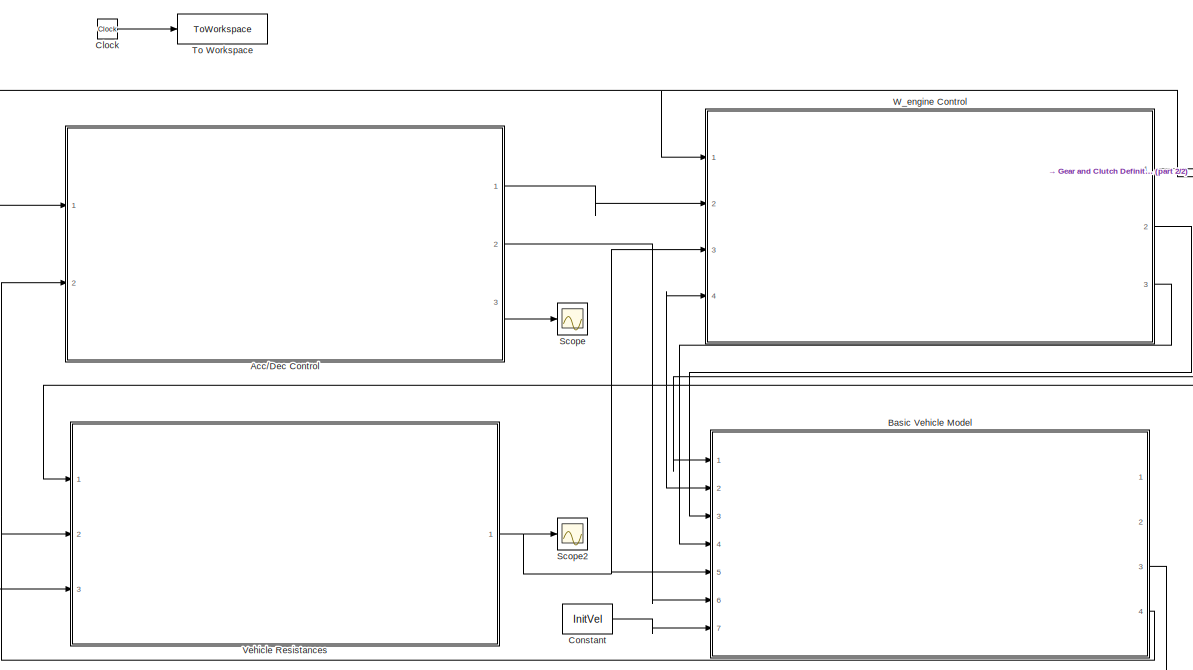
[diagram: root canvas - part 1/2, center side, full height]
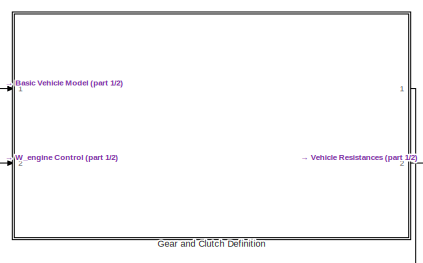
[diagram: root canvas - part 2/2, middle right region]
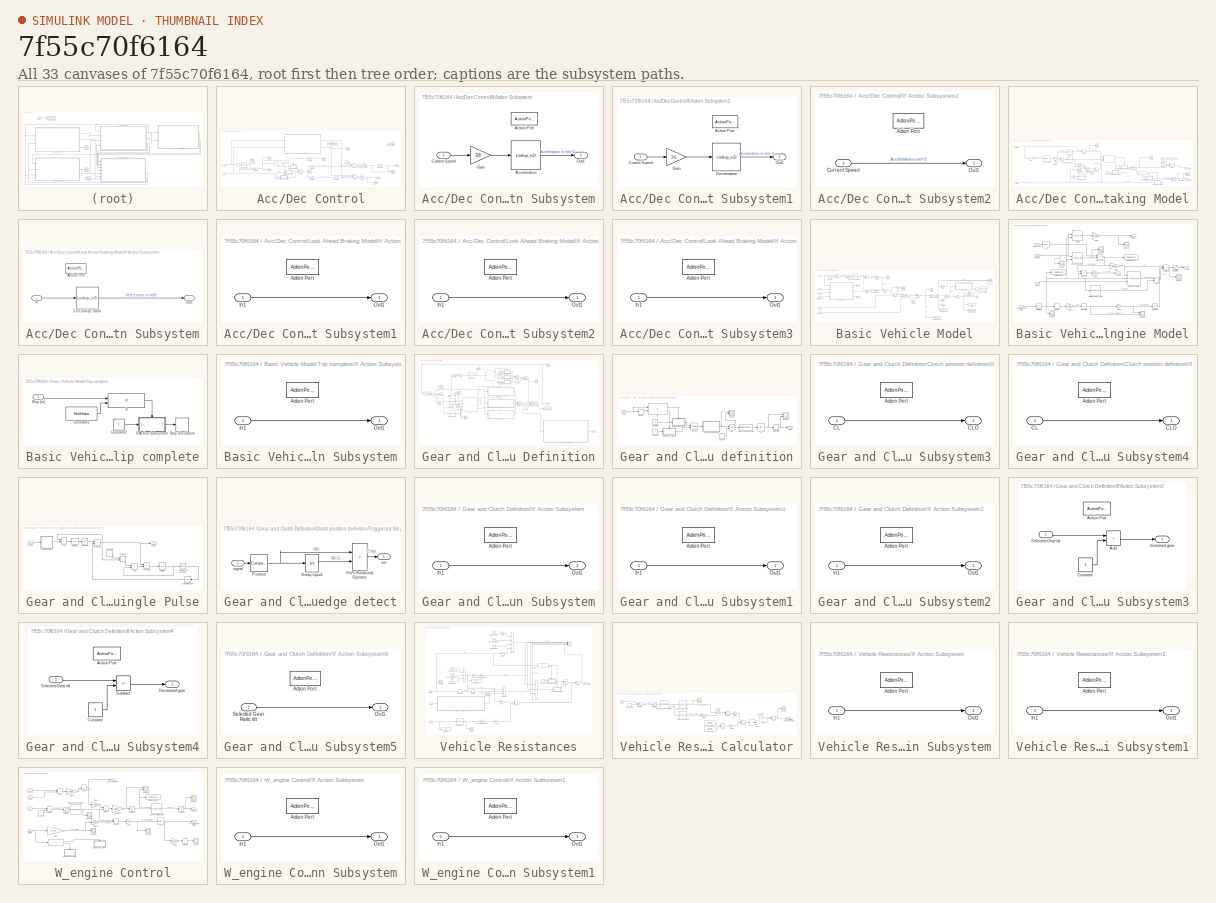
[diagram: thumbnail index - all 33 canvases of the model, root first then tree order]
MODEL slx_7f55c70f6164
KIND model
CONFIG AbsTol = auto
CONFIG EnableMultiTasking = off
CONFIG FixedStep = dt
CONFIG MaxStep = auto
CONFIG MinStep = auto
CONFIG RelTol = 1e-3
CONFIG SampleTimeConstraint = Unconstrained
CONFIG SolverName = FixedStepAuto
CONFIG StartTime = 0.0
CONFIG StopTime = 45
BLOCK [SubSystem] Acc//Dec Control
  Ports = [2, 3]
  RequestExecContextInheritance = off
BLOCK [Scope] Acc//Dec Control/ACC1
  Floating = off
  NumInputPorts = 2
  Ports = [2]
  ScopeSpecificationString = Simulink.scopes.TimeScopeBlockCfg('CurrentConfiguration', extmgr.ConfigurationSet(extmgr.Configuration('Core','General UI',true),extmgr.Configuration('Core','Source UI',true),extmgr.Configuration('Sources','WiredSimulink',true,'DataLoggingVariableName','ScopeData8'),extmgr.Configuration('Visuals','Time Domain',true,'SerializedDisplays',{struct('MinYLimReal','-12430521994362334.00000','MaxYLimReal'...<+1655ch>
BLOCK [Rounding] Acc//Dec Control/Ceil
  Operator = ceil
BLOCK [Constant] Acc//Dec Control/Constant
  Value = 0
BLOCK [Constant] Acc//Dec Control/Constant3
  Value = 0
BLOCK [Scope] Acc//Dec Control/DEC1
  Floating = off
  NumInputPorts = 1
  Ports = [1]
  ScopeSpecificationString = Simulink.scopes.TimeScopeBlockCfg('CurrentConfiguration', extmgr.ConfigurationSet(extmgr.Configuration('Core','General UI',true),extmgr.Configuration('Core','Source UI',true),extmgr.Configuration('Sources','WiredSimulink',true,'DataLoggingVariableName','ScopeData9'),extmgr.Configuration('Visuals','Time Domain',true,'SerializedDisplays',{struct('MinYLimReal','-5010.25652','MaxYLimReal','556.69517',...<+1448ch>
BLOCK [Outport] Acc//Dec Control/F_acc (N)
BLOCK [Outport] Acc//Dec Control/F_brake (N)
  Port = 2
BLOCK [Gain] Acc//Dec Control/Gain2
  Gain = Mtot
BLOCK [Gain] Acc//Dec Control/Gain3
  Gain = Mtot
BLOCK [If] Acc//Dec Control/If
  ElseIfExpressions = u1 < 0
  Ports = [1, 3]
BLOCK [SubSystem] Acc//Dec Control/If Action Subsystem
  Ports = [1, 1, 0, 0, 0, 0, 0, 1]
  RequestExecContextInheritance = off
  TreatAsAtomicUnit = on
BLOCK [Lookup_n-D] Acc//Dec Control/If Action Subsystem/Acceleration
  BreakpointsForDimension1 = AccLim(:,1)
  InputPortMap = u0
  InternalRulePriority = Speed
  NumberOfTableDimensions = 1
  Ports = [1, 1]
  RndMeth = Simplest
  Table = AccLim(:,2)
BLOCK [ActionPort] Acc//Dec Control/If Action Subsystem/Action Port
  ActionPortLabel = if(u1 > 0)
BLOCK [Inport] Acc//Dec Control/If Action Subsystem/Current Speed
BLOCK [Gain] Acc//Dec Control/If Action Subsystem/Gain
  Gain = 3.6
BLOCK [Outport] Acc//Dec Control/If Action Subsystem/Out1
BLOCK [SubSystem] Acc//Dec Control/If Action Subsystem1
  Ports = [1, 1, 0, 0, 0, 0, 0, 1]
  RequestExecContextInheritance = off
  TreatAsAtomicUnit = on
BLOCK [ActionPort] Acc//Dec Control/If Action Subsystem1/Action Port
  ActionPortLabel = elseif(u1 < 0)
BLOCK [Inport] Acc//Dec Control/If Action Subsystem1/Current Speed
BLOCK [Lookup_n-D] Acc//Dec Control/If Action Subsystem1/Deceleration
  BreakpointsForDimension1 = AccLim(:,1)
  InputPortMap = u0
  InternalRulePriority = Speed
  NumberOfTableDimensions = 1
  Ports = [1, 1]
  RndMeth = Simplest
  Table = AccLim(:,3)
BLOCK [Gain] Acc//Dec Control/If Action Subsystem1/Gain
  Gain = 3.6
BLOCK [Outport] Acc//Dec Control/If Action Subsystem1/Out1
BLOCK [SubSystem] Acc//Dec Control/If Action Subsystem2
  Ports = [1, 1, 0, 0, 0, 0, 0, 1]
  RequestExecContextInheritance = off
  TreatAsAtomicUnit = on
BLOCK [ActionPort] Acc//Dec Control/If Action Subsystem2/Action Port
  ActionPortLabel = else
BLOCK [Inport] Acc//Dec Control/If Action Subsystem2/Current Speed
BLOCK [Outport] Acc//Dec Control/If Action Subsystem2/Out1
BLOCK [SubSystem] Acc//Dec Control/Look Ahead Braking Model
  Commented = on
  Ports = [2, 2]
  RequestExecContextInheritance = off
BLOCK [Lookup_n-D] Acc//Dec Control/Look Ahead Braking Model/1-D Lookup Table
  BreakpointsForDimension1 = AccLim(:,1)
  InputPortMap = u0
  InternalRulePriority = Speed
  NumberOfTableDimensions = 1
  Ports = [1, 1]
  RndMeth = Simplest
  Table = AccLim(:,3)
BLOCK [Sum] Acc//Dec Control/Look Ahead Braking Model/Add3
  IconShape = rectangular
  Ports = [2, 1]
BLOCK [Rounding] Acc//Dec Control/Look Ahead Braking Model/Ceil
  Operator = ceil
BLOCK [Rounding] Acc//Dec Control/Look Ahead Braking Model/Ceil1
  Operator = ceil
BLOCK [Constant] Acc//Dec Control/Look Ahead Braking Model/Constant
BLOCK [Constant] Acc//Dec Control/Look Ahead Braking Model/Constant1
  Value = 0
BLOCK [Constant] Acc//Dec Control/Look Ahead Braking Model/Constant2
BLOCK [Constant] Acc//Dec Control/Look Ahead Braking Model/Constant3
  Value = 0
BLOCK [Constant] Acc//Dec Control/Look Ahead Braking Model/Constant5
  Value = 0
BLOCK [Outport] Acc//Dec Control/Look Ahead Braking Model/Dec_Override
BLOCK [Product] Acc//Dec Control/Look Ahead Braking Model/Divide
  Inputs = */
  Ports = [2, 1]
BLOCK [Gain] Acc//Dec Control/Look Ahead Braking Model/Gain
  Gain = 2
BLOCK [Gain] Acc//Dec Control/Look Ahead Braking Model/Gain1
  Gain = 3.6
BLOCK [SubSystem] Acc//Dec Control/Look Ahead Braking Model/If Action Subsystem
  Ports = [1, 1, 0, 0, 0, 0, 0, 1]
  RequestExecContextInheritance = off
  TreatAsAtomicUnit = on
BLOCK [Lookup_n-D] Acc//Dec Control/Look Ahead Braking Model/If Action Subsystem/1-D Lookup Table
  BreakpointsForDimension1 = AccLim(:,1)
  InputPortMap = u0
  InternalRulePriority = Speed
  NumberOfTableDimensions = 1
  Ports = [1, 1]
  RndMeth = Simplest
  Table = AccLim(:,3)
BLOCK [ActionPort] Acc//Dec Control/Look Ahead Braking Model/If Action Subsystem/Action Port
  ActionPortLabel = if(u1 > 0)
BLOCK [Inport] Acc//Dec Control/Look Ahead Braking Model/If Action Subsystem/In
BLOCK [Outport] Acc//Dec Control/Look Ahead Braking Model/If Action Subsystem/Out1
BLOCK [SubSystem] Acc//Dec Control/Look Ahead Braking Model/If Action Subsystem1
  Ports = [1, 1, 0, 0, 0, 0, 0, 1]
  RequestExecContextInheritance = off
  TreatAsAtomicUnit = on
BLOCK [ActionPort] Acc//Dec Control/Look Ahead Braking Model/If Action Subsystem1/Action Port
  ActionPortLabel = else
BLOCK [Inport] Acc//Dec Control/Look Ahead Braking Model/If Action Subsystem1/In1
BLOCK [Outport] Acc//Dec Control/Look Ahead Braking Model/If Action Subsystem1/Out1
BLOCK [SubSystem] Acc//Dec Control/Look Ahead Braking Model/If Action Subsystem2
  Ports = [1, 1, 0, 0, 0, 0, 0, 1]
  RequestExecContextInheritance = off
  TreatAsAtomicUnit = on
BLOCK [ActionPort] Acc//Dec Control/Look Ahead Braking Model/If Action Subsystem2/Action Port
  ActionPortLabel = if(u1 <= u2 & u3 < u4)
BLOCK [Inport] Acc//Dec Control/Look Ahead Braking Model/If Action Subsystem2/In1
BLOCK [Outport] Acc//Dec Control/Look Ahead Braking Model/If Action Subsystem2/Out1
BLOCK [SubSystem] Acc//Dec Control/Look Ahead Braking Model/If Action Subsystem3
  Ports = [1, 1, 0, 0, 0, 0, 0, 1]
  RequestExecContextInheritance = off
  TreatAsAtomicUnit = on
BLOCK [ActionPort] Acc//Dec Control/Look Ahead Braking Model/If Action Subsystem3/Action Port
  ActionPortLabel = else
BLOCK [Inport] Acc//Dec Control/Look Ahead Braking Model/If Action Subsystem3/In1
BLOCK [Outport] Acc//Dec Control/Look Ahead Braking Model/If Action Subsystem3/Out1
BLOCK [If] Acc//Dec Control/Look Ahead Braking Model/If1
  IfExpression = u1 <= u2 & u3 < u4
  NumInputs = 4
  Ports = [4, 2]
BLOCK [If] Acc//Dec Control/Look Ahead Braking Model/If2
  Ports = [1, 2]
BLOCK [Math] Acc//Dec Control/Look Ahead Braking Model/Magnitude Squared
  Operator = square
  Ports = [1, 1]
BLOCK [Math] Acc//Dec Control/Look Ahead Braking Model/Magnitude Squared1
  Operator = square
  Ports = [1, 1]
BLOCK [Merge] Acc//Dec Control/Look Ahead Braking Model/Merge
  Ports = [2, 1]
BLOCK [Merge] Acc//Dec Control/Look Ahead Braking Model/Merge1
  Ports = [2, 1]
BLOCK [Inport] Acc//Dec Control/Look Ahead Braking Model/Pos (m)
BLOCK [RateLimiter] Acc//Dec Control/Look Ahead Braking Model/Rate Limiter
  SampleTimeMode = inherited
BLOCK [Lookup_n-D] Acc//Dec Control/Look Ahead Braking Model/SCP
  BreakpointsForDimension1 = SegNo
  BreakpointsForDimension2 = G1Inprpm
  InputPortMap = u0
  InternalRulePriority = Speed
  InterpMethod = Linear Lagrange
  NumberOfTableDimensions = 1
  Ports = [1, 1]
  RndMeth = Simplest
  Table = CovDist
BLOCK [Scope] Acc//Dec Control/Look Ahead Braking Model/Scope
  Floating = off
  NumInputPorts = 1
  Ports = [1]
  ScopeSpecificationString = Simulink.scopes.TimeScopeBlockCfg('CurrentConfiguration', extmgr.ConfigurationSet(extmgr.Configuration('Core','General UI',true),extmgr.Configuration('Core','Source UI',true),extmgr.Configuration('Sources','WiredSimulink',true,'DataLoggingVariableName','ScopeData3'),extmgr.Configuration('Visuals','Time Domain',true,'SerializedDisplays',{struct('MinYLimReal','-28.00000','MaxYLimReal','252.00000','Y...<+1411ch>
BLOCK [Scope] Acc//Dec Control/Look Ahead Braking Model/Scope1
  Floating = off
  NumInputPorts = 2
  Ports = [2]
  ScopeSpecificationString = Simulink.scopes.TimeScopeBlockCfg('CurrentConfiguration', extmgr.ConfigurationSet(extmgr.Configuration('Core','General UI',true),extmgr.Configuration('Core','Source UI',true),extmgr.Configuration('Sources','WiredSimulink',true,'DataLoggingVariableName','ScopeData3'),extmgr.Configuration('Visuals','Time Domain',true,'SerializedDisplays',{struct('MinYLimReal','-1.125','MaxYLimReal','0.125','YLabelRe...<+1443ch>
BLOCK [Scope] Acc//Dec Control/Look Ahead Braking Model/Scope2
  Floating = off
  NumInputPorts = 1
  Ports = [1]
  ScopeSpecificationString = Simulink.scopes.TimeScopeBlockCfg('CurrentConfiguration', extmgr.ConfigurationSet(extmgr.Configuration('Core','General UI',true),extmgr.Configuration('Core','Source UI',true),extmgr.Configuration('Sources','WiredSimulink',true,'DataLoggingVariableName','ScopeData33'),extmgr.Configuration('Visuals','Time Domain',true,'SerializedDisplays',{struct('MinYLimReal','-0.125','MaxYLimReal','1.125','YLabelR...<+1353ch>
BLOCK [Lookup_n-D] Acc//Dec Control/Look Ahead Braking Model/Segment number
  BreakpointsForDimension1 = CovDist
  BreakpointsForDimension2 = G1Inprpm
  InputPortMap = u0
  InternalRulePriority = Speed
  InterpMethod = Linear Lagrange
  NumberOfTableDimensions = 1
  Ports = [1, 1]
  RndMeth = Simplest
  Table = SegNo
BLOCK [Sum] Acc//Dec Control/Look Ahead Braking Model/Subtract
  IconShape = rectangular
  Inputs = -+
  Ports = [2, 1]
BLOCK [Sum] Acc//Dec Control/Look Ahead Braking Model/Subtract1
  IconShape = rectangular
  Inputs = +-
  Ports = [2, 1]
BLOCK [Switch] Acc//Dec Control/Look Ahead Braking Model/Switch
  Criteria = u2 > Threshold
  InputSameDT = off
  SaturateOnIntegerOverflow = off
BLOCK [Inport] Acc//Dec Control/Look Ahead Braking Model/Vel (m//s)
  Port = 2
BLOCK [Constant] Acc//Dec Control/Look Ahead Braking Model/control val
  NameLocation = left
BLOCK [Outport] Acc//Dec Control/Look Ahead Braking Model/dec_add (m//s^2)
  Port = 2
BLOCK [Lookup_n-D] Acc//Dec Control/Look Ahead Braking Model/upcoming speed (m//s)
  BreakpointsForDimension1 = SegNo
  BreakpointsForDimension2 = G1Inprpm
  InputPortMap = u0
  InternalRulePriority = Speed
  InterpMethod = Linear Lagrange
  NumberOfTableDimensions = 1
  Ports = [1, 1]
  RndMeth = Simplest
  Table = SegSPLatinmps
BLOCK [Lookup_n-D] Acc//Dec Control/Max Speed Profile (m//s)
  BreakpointsForDimension1 = [1:length(MaxSpeedProfile)]
  BreakpointsForDimension2 = G1Inprpm
  InputPortMap = u0
  InternalRulePriority = Speed
  InterpMethod = Linear Lagrange
  NumberOfTableDimensions = 1
  Ports = [1, 1]
  RndMeth = Simplest
  Table = MaxSpeedProfile
BLOCK [Merge] Acc//Dec Control/Merge
  Inputs = 3
  Ports = [3, 1]
BLOCK [Reference] Acc//Dec Control/PID Controller  REF=pid_lib/PID Controller
  Ports = [1, 1]
  SourceBlock = pid_lib/PID Controller
  SourceProductBaseCode = SL
  SourceType = PID 1dof
BLOCK [Reference] Acc//Dec Control/PID Controller1  REF=pid_lib/PID Controller
  Ports = [1, 1]
  SourceBlock = pid_lib/PID Controller
  SourceProductBaseCode = SL
  SourceType = PID 1dof
BLOCK [Inport] Acc//Dec Control/Pos (m)
  Port = 2
BLOCK [RateLimiter] Acc//Dec Control/Rate Limiter1
  Commented = on
  FallingSlewLimit = -0.5
  RisingSlewLimit = 0.5
  SampleTimeMode = inherited
BLOCK [RateLimiter] Acc//Dec Control/Rate Limiter2
  SampleTimeMode = inherited
BLOCK [RateLimiter] Acc//Dec Control/Rate Limiter3
  SampleTimeMode = inherited
BLOCK [Saturate] Acc//Dec Control/Saturation
  LowerLimit = 0
  UpperLimit = 1
BLOCK [Saturate] Acc//Dec Control/Saturation1
  LowerLimit = -1
  UpperLimit = 0
BLOCK [Saturate] Acc//Dec Control/Saturation2
  Commented = on
  LowerLimit = -1
  UpperLimit = 1
BLOCK [Scope] Acc//Dec Control/Scope
  Floating = off
  NumInputPorts = 2
  Ports = [2]
  ScopeSpecificationString = Simulink.scopes.TimeScopeBlockCfg('CurrentConfiguration', extmgr.ConfigurationSet(extmgr.Configuration('Core','General UI',true),extmgr.Configuration('Core','Source UI',true),extmgr.Configuration('Sources','WiredSimulink',true,'DataLoggingVariableName','ScopeData18'),extmgr.Configuration('Visuals','Time Domain',true,'SerializedDisplays',{struct('MinYLimReal','-1.73611','MaxYLimReal','15.625','YLab...<+1448ch>
BLOCK [Scope] Acc//Dec Control/Scope1
  Floating = off
  NumInputPorts = 1
  Ports = [1]
  ScopeSpecificationString = Simulink.scopes.TimeScopeBlockCfg('CurrentConfiguration', extmgr.ConfigurationSet(extmgr.Configuration('Core','General UI',true),extmgr.Configuration('Core','Source UI',true),extmgr.Configuration('Sources','WiredSimulink',true,'DataLoggingVariableName','ScopeData7'),extmgr.Configuration('Visuals','Time Domain',true,'SerializedDisplays',{struct('MinYLimReal','-1.00000','MaxYLimReal','1.00000','YLab...<+1420ch>
BLOCK [Scope] Acc//Dec Control/Scope2
  Floating = off
  NumInputPorts = 1
  Ports = [1]
  ScopeSpecificationString = Simulink.scopes.TimeScopeBlockCfg('CurrentConfiguration', extmgr.ConfigurationSet(extmgr.Configuration('Core','General UI',true),extmgr.Configuration('Core','Source UI',true),extmgr.Configuration('Sources','WiredSimulink',true,'DataLoggingVariableName','ScopeData3'),extmgr.Configuration('Visuals','Time Domain',true,'SerializedDisplays',{struct('MinYLimReal','-1.08598','MaxYLimReal','1.23178','YLab...<+1471ch>
BLOCK [Scope] Acc//Dec Control/Scope3
  Floating = off
  NumInputPorts = 1
  Ports = [1]
  ScopeSpecificationString = Simulink.scopes.TimeScopeBlockCfg('CurrentConfiguration', extmgr.ConfigurationSet(extmgr.Configuration('Core','General UI',true),extmgr.Configuration('Core','Source UI',true),extmgr.Configuration('Sources','WiredSimulink',true,'DataLoggingVariableName','ScopeData6'),extmgr.Configuration('Visuals','Time Domain',true,'SerializedDisplays',{struct('MinYLimReal','-10.81006','MaxYLimReal','236.17945','Y...<+1489ch>
BLOCK [Scope] Acc//Dec Control/Scope4
  Floating = off
  NumInputPorts = 2
  Ports = [2]
  ScopeSpecificationString = Simulink.scopes.TimeScopeBlockCfg('CurrentConfiguration', extmgr.ConfigurationSet(extmgr.Configuration('Core','General UI',true),extmgr.Configuration('Core','Source UI',true),extmgr.Configuration('Sources','WiredSimulink',true,'DataLoggingVariableName','ScopeData7'),extmgr.Configuration('Visuals','Time Domain',true,'SerializedDisplays',{struct('MinYLimReal','-1.73611','MaxYLimReal','15.625','YLabe...<+1438ch>
BLOCK [Sum] Acc//Dec Control/Subtract
  IconShape = rectangular
  Inputs = +-
  Ports = [2, 1]
BLOCK [Switch] Acc//Dec Control/Switch
  Criteria = u2 > Threshold
  InputSameDT = off
  SaturateOnIntegerOverflow = off
BLOCK [Switch] Acc//Dec Control/Switch4
  Criteria = u2 > Threshold
  InputSameDT = off
  SaturateOnIntegerOverflow = off
BLOCK [ToWorkspace] Acc//Dec Control/To Workspace1
  FixptAsFi = on
  MaxDataPoints = inf
  Ports = [1]
  SampleTime = -1
  SaveFormat = Timeseries
  VariableName = LAB
BLOCK [Inport] Acc//Dec Control/Vel (m//s)
BLOCK [Outport] Acc//Dec Control/Vel_error (m//s)
  Port = 3
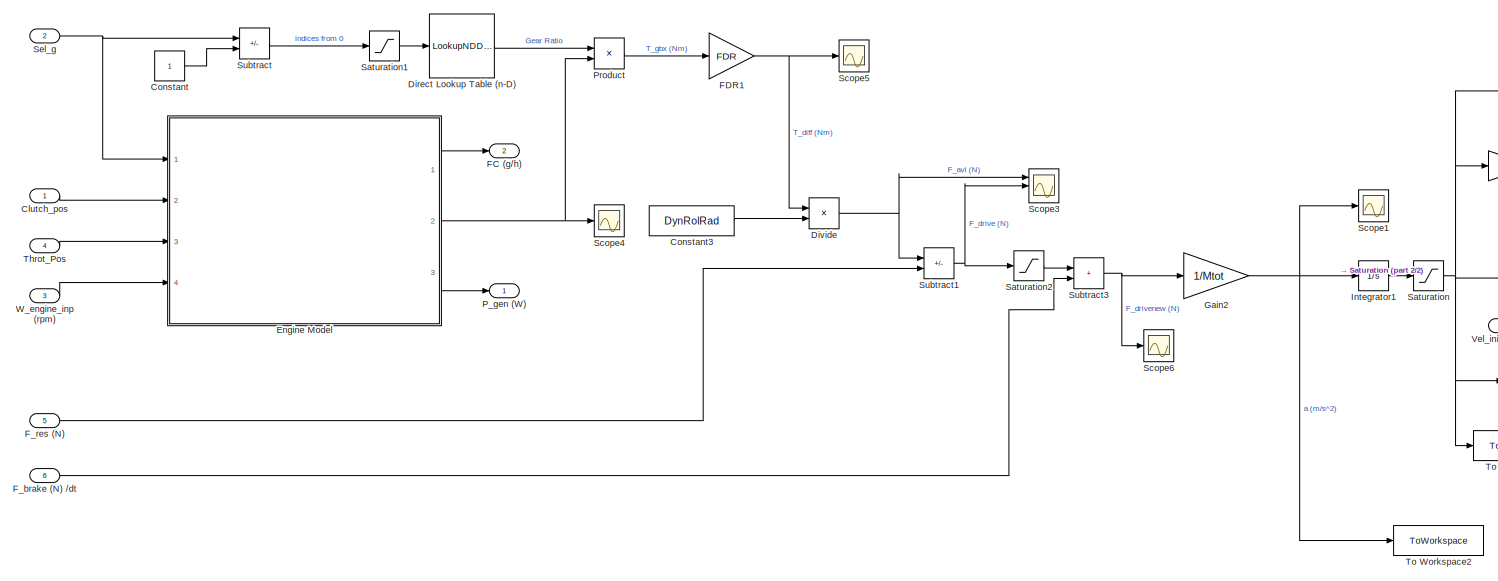
[diagram: Basic Vehicle Model - part 1/2, center side, full height]
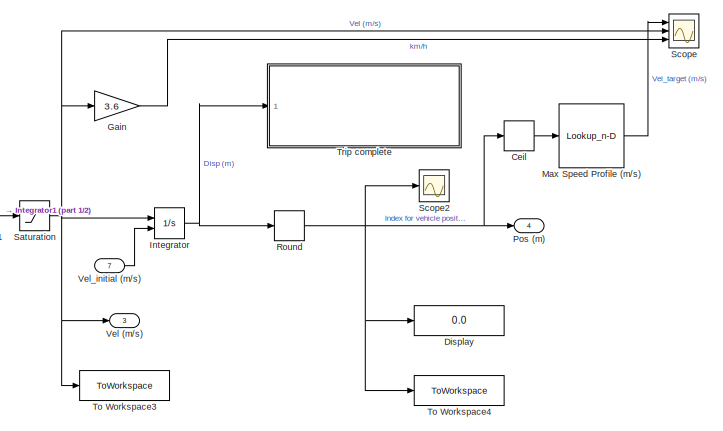
[diagram: Basic Vehicle Model - part 2/2, middle right region]
BLOCK [SubSystem] Basic Vehicle Model
  Ports = [7, 4]
  RequestExecContextInheritance = off
BLOCK [Rounding] Basic Vehicle Model/Ceil
  Operator = ceil
BLOCK [Inport] Basic Vehicle Model/Clutch_pos
BLOCK [Constant] Basic Vehicle Model/Constant
BLOCK [Constant] Basic Vehicle Model/Constant3
  Value = DynRolRad
BLOCK [LookupNDDirect] Basic Vehicle Model/Direct Lookup Table (n-D)
  NumberOfTableDimensions = 1
  Ports = [1, 1]
  Table = GRa
BLOCK [Display] Basic Vehicle Model/Display
  Decimation = 1
  Ports = [1]
BLOCK [Product] Basic Vehicle Model/Divide
  Inputs = */
  Ports = [2, 1]
BLOCK [SubSystem] Basic Vehicle Model/Engine Model
  Ports = [4, 3]
  RequestExecContextInheritance = off
BLOCK [Lookup_n-D] Basic Vehicle Model/Engine Model/1-D Lookup Table
  BreakpointsForDimension1 = ThrotPos
  BreakpointsForDimension2 = RpmBrkPnt
  InputPortMap = u0,u1
  InternalRulePriority = Speed
  Ports = [2, 1]
  RndMeth = Simplest
  Table = ThrotTableVal
BLOCK [Sum] Basic Vehicle Model/Engine Model/Add2
  IconShape = rectangular
  Ports = [2, 1]
BLOCK [Product] Basic Vehicle Model/Engine Model/Clutch value
  Ports = [2, 1]
BLOCK [Inport] Basic Vehicle Model/Engine Model/Clutch_pos
  Port = 2
BLOCK [Derivative] Basic Vehicle Model/Engine Model/Derivative
BLOCK [Outport] Basic Vehicle Model/Engine Model/FC (g//sec)
BLOCK [Lookup_n-D] Basic Vehicle Model/Engine Model/FC Map
  BreakpointsForDimension1 = ThrotPos
  BreakpointsForDimension2 = RpmBrkPnt
  InputPortMap = u0,u1
  InternalRulePriority = Speed
  Ports = [2, 1]
  RndMeth = Simplest
  Table = FCTableVal
BLOCK [Lookup_n-D] Basic Vehicle Model/Engine Model/GBX Loss Tables
  BreakpointsForDimension1 = GInpTor
  BreakpointsForDimension2 = GInprpm
  BreakpointsForDimension3 = GearNo
  InputPortMap = u0,u1,u2
  InternalRulePriority = Speed
  InterpMethod = Linear Lagrange
  NumberOfTableDimensions = 3
  Ports = [3, 1]
  RndMeth = Simplest
  Table = GTorLoss
BLOCK [Gain] Basic Vehicle Model/Engine Model/Gain
  Gain = etaClutch
BLOCK [Gain] Basic Vehicle Model/Engine Model/Gain1
  Gain = pi/30
BLOCK [Gain] Basic Vehicle Model/Engine Model/Gain2
  Gain = 1/3600
BLOCK [Gain] Basic Vehicle Model/Engine Model/Gain3
  Gain = Je
BLOCK [Gain] Basic Vehicle Model/Engine Model/Gain4
  Gain = pi/30
BLOCK [InitialCondition] Basic Vehicle Model/Engine Model/IC
  Value = 0
BLOCK [Memory] Basic Vehicle Model/Engine Model/Memory
BLOCK [Lookup_n-D] Basic Vehicle Model/Engine Model/Motoring Torque Table
  BreakpointsForDimension1 = EngineRpm
  BreakpointsForDimension2 = G1Inprpm
  InputPortMap = u0
  InternalRulePriority = Speed
  InterpMethod = Linear Lagrange
  NumberOfTableDimensions = 1
  Ports = [1, 1]
  RndMeth = Simplest
  Table = MotoringTor
BLOCK [Outport] Basic Vehicle Model/Engine Model/P_gen (W)
  Port = 3
BLOCK [Product] Basic Vehicle Model/Engine Model/Product1
  Ports = [2, 1]
BLOCK [Saturate] Basic Vehicle Model/Engine Model/Saturation
  LowerLimit = 0
  UpperLimit = inf
BLOCK [Saturate] Basic Vehicle Model/Engine Model/Saturation1
  LowerLimit = min(EngineRpm)
  UpperLimit = max(EngineRpm)
BLOCK [Saturate] Basic Vehicle Model/Engine Model/Saturation2
  LowerLimit = 0
  UpperLimit = inf
BLOCK [Scope] Basic Vehicle Model/Engine Model/Scope
  Floating = off
  NumInputPorts = 1
  Ports = [1]
  ScopeSpecificationString = Simulink.scopes.TimeScopeBlockCfg('CurrentConfiguration', extmgr.ConfigurationSet(extmgr.Configuration('Core','General UI',true),extmgr.Configuration('Core','Source UI',true),extmgr.Configuration('Sources','WiredSimulink',true,'DataLoggingVariableName','ScopeData2'),extmgr.Configuration('Visuals','Time Domain',true,'SerializedDisplays',{struct('MinYLimReal','-0.125','MaxYLimReal','1.125','YLabelRe...<+1443ch>
BLOCK [Scope] Basic Vehicle Model/Engine Model/Scope1
  Floating = off
  NumInputPorts = 1
  Ports = [1]
  ScopeSpecificationString = Simulink.scopes.TimeScopeBlockCfg('CurrentConfiguration', extmgr.ConfigurationSet(extmgr.Configuration('Core','General UI',true),extmgr.Configuration('Core','Source UI',true),extmgr.Configuration('Sources','WiredSimulink',true,'DataLoggingVariableName','ScopeData5'),extmgr.Configuration('Visuals','Time Domain',true,'SerializedDisplays',{struct('MinYLimReal','-605.33809','MaxYLimReal','5448.04282',...<+1494ch>
BLOCK [Scope] Basic Vehicle Model/Engine Model/Scope2
  Floating = off
  NumInputPorts = 1
  Ports = [1]
  ScopeSpecificationString = Simulink.scopes.TimeScopeBlockCfg('CurrentConfiguration', extmgr.ConfigurationSet(extmgr.Configuration('Core','General UI',true),extmgr.Configuration('Core','Source UI',true),extmgr.Configuration('Sources','WiredSimulink',true,'DataLoggingVariableName','ScopeData10'),extmgr.Configuration('Visuals','Time Domain',true,'SerializedDisplays',{struct('MinYLimReal','-148.18227','MaxYLimReal','1388.61362'...<+1458ch>
BLOCK [Scope] Basic Vehicle Model/Engine Model/Scope3
  Floating = off
  NumInputPorts = 1
  Ports = [1]
  ScopeSpecificationString = Simulink.scopes.TimeScopeBlockCfg('CurrentConfiguration', extmgr.ConfigurationSet(extmgr.Configuration('Core','General UI',true),extmgr.Configuration('Core','Source UI',true),extmgr.Configuration('Sources','WiredSimulink',true,'DataLoggingVariableName','ScopeData4'),extmgr.Configuration('Visuals','Time Domain',true,'SerializedDisplays',{struct('MinYLimReal','-113.07072','MaxYLimReal','1017.63644',...<+1393ch>
BLOCK [Scope] Basic Vehicle Model/Engine Model/Scope5
  Floating = off
  NumInputPorts = 1
  Ports = [1]
  ScopeSpecificationString = Simulink.scopes.TimeScopeBlockCfg('CurrentConfiguration', extmgr.ConfigurationSet(extmgr.Configuration('Core','General UI',true),extmgr.Configuration('Core','Source UI',true),extmgr.Configuration('Sources','WiredSimulink',true,'DataLoggingVariableName','ScopeData4'),extmgr.Configuration('Visuals','Time Domain',true,'SerializedDisplays',{struct('MinYLimReal','-0.35706','MaxYLimReal','8.63549','YLab...<+1389ch>
BLOCK [Scope] Basic Vehicle Model/Engine Model/Scope6
  Floating = off
  NumInputPorts = 2
  Ports = [2]
  ScopeSpecificationString = Simulink.scopes.TimeScopeBlockCfg('CurrentConfiguration', extmgr.ConfigurationSet(extmgr.Configuration('Core','General UI',true),extmgr.Configuration('Core','Source UI',true),extmgr.Configuration('Sources','WiredSimulink',true,'DataLoggingVariableName','ScopeData5'),extmgr.Configuration('Visuals','Time Domain',true,'SerializedDisplays',{struct('MinYLimReal','-774.639','MaxYLimReal','833.32254','YL...<+1528ch>
BLOCK [Inport] Basic Vehicle Model/Engine Model/Sel_g
BLOCK [Sum] Basic Vehicle Model/Engine Model/Subtract2
  IconShape = rectangular
  Inputs = ++-
  Ports = [3, 1]
BLOCK [Outport] Basic Vehicle Model/Engine Model/T_out
  Port = 2
BLOCK [Inport] Basic Vehicle Model/Engine Model/Throt_pos
  Port = 3
BLOCK [ToWorkspace] Basic Vehicle Model/Engine Model/To Workspace
  FixptAsFi = on
  MaxDataPoints = inf
  Ports = [1]
  SampleTime = -1
  SaveFormat = Timeseries
  VariableName = W_engine_inp
BLOCK [ToWorkspace] Basic Vehicle Model/Engine Model/To Workspace1
  FixptAsFi = on
  MaxDataPoints = inf
  Ports = [1]
  SampleTime = -1
  SaveFormat = Timeseries
  VariableName = T_out
BLOCK [Inport] Basic Vehicle Model/Engine Model/W_engine_inp (rpm)
  Port = 4
BLOCK [Outport] Basic Vehicle Model/FC (g//h)
  Port = 2
BLOCK [Gain] Basic Vehicle Model/FDR1
  Gain = FDR
BLOCK [Inport] Basic Vehicle Model/F_brake (N) //dt
  Port = 6
BLOCK [Inport] Basic Vehicle Model/F_res (N)
  Port = 5
BLOCK [Gain] Basic Vehicle Model/Gain
  Gain = 3.6
BLOCK [Gain] Basic Vehicle Model/Gain2
  Gain = 1/Mtot
BLOCK [Integrator] Basic Vehicle Model/Integrator
  ContinuousStateAttributes = 'velocity'
  InitialConditionSource = external
  Ports = [2, 1]
BLOCK [Integrator] Basic Vehicle Model/Integrator1
  ContinuousStateAttributes = 'acceleration'
  Ports = [1, 1]
BLOCK [Lookup_n-D] Basic Vehicle Model/Max Speed Profile (m//s)
  BreakpointsForDimension1 = [1:length(MaxSpeedProfile)]
  BreakpointsForDimension2 = G1Inprpm
  InputPortMap = u0
  InternalRulePriority = Speed
  InterpMethod = Linear Lagrange
  NumberOfTableDimensions = 1
  Ports = [1, 1]
  RndMeth = Simplest
  Table = MaxSpeedProfile
BLOCK [Outport] Basic Vehicle Model/P_gen (W)
BLOCK [Outport] Basic Vehicle Model/Pos (m)
  Port = 4
BLOCK [Product] Basic Vehicle Model/Product
  Ports = [2, 1]
BLOCK [Rounding] Basic Vehicle Model/Round
  Operator = ceil
BLOCK [Saturate] Basic Vehicle Model/Saturation
  LowerLimit = 0
  UpperLimit = inf
BLOCK [Saturate] Basic Vehicle Model/Saturation1
  LowerLimit = 0
  UpperLimit = inf
BLOCK [Saturate] Basic Vehicle Model/Saturation2
  LowerLimit = 0
  UpperLimit = inf
BLOCK [Scope] Basic Vehicle Model/Scope
  Floating = off
  NumInputPorts = 3
  Ports = [3]
  ScopeSpecificationString = Simulink.scopes.TimeScopeBlockCfg('CurrentConfiguration', extmgr.ConfigurationSet(extmgr.Configuration('Core','General UI',true),extmgr.Configuration('Core','Source UI',true),extmgr.Configuration('Sources','WiredSimulink',true,'DataLoggingVariableName','ScopeData2'),extmgr.Configuration('Visuals','Time Domain',true,'SerializedDisplays',{struct('MinYLimReal','-13.95707','MaxYLimReal','125.61366','Y...<+1540ch>
BLOCK [Scope] Basic Vehicle Model/Scope1
  Floating = off
  NumInputPorts = 1
  Ports = [1]
  ScopeSpecificationString = Simulink.scopes.TimeScopeBlockCfg('CurrentConfiguration', extmgr.ConfigurationSet(extmgr.Configuration('Core','General UI',true),extmgr.Configuration('Core','Source UI',true),extmgr.Configuration('Sources','WiredSimulink',true,'DataLoggingVariableName','ScopeData3'),extmgr.Configuration('Visuals','Time Domain',true,'SerializedDisplays',{struct('MinYLimReal','-2.04238','MaxYLimReal','11.75755','YLa...<+1445ch>
BLOCK [Scope] Basic Vehicle Model/Scope2
  Floating = off
  NumInputPorts = 1
  Ports = [1]
  ScopeSpecificationString = Simulink.scopes.TimeScopeBlockCfg('CurrentConfiguration', extmgr.ConfigurationSet(extmgr.Configuration('Core','General UI',true),extmgr.Configuration('Core','Source UI',true),extmgr.Configuration('Sources','WiredSimulink',true,'DataLoggingVariableName','ScopeData1'),extmgr.Configuration('Visuals','Time Domain',true,'SerializedDisplays',{struct('MinYLimReal','-376.5','MaxYLimReal','3388.5','YLabelR...<+1450ch>
BLOCK [Scope] Basic Vehicle Model/Scope3
  Floating = off
  NumInputPorts = 3
  Ports = [3]
  ScopeSpecificationString = Simulink.scopes.TimeScopeBlockCfg('CurrentConfiguration', extmgr.ConfigurationSet(extmgr.Configuration('Core','General UI',true),extmgr.Configuration('Core','Source UI',true),extmgr.Configuration('Sources','WiredSimulink',true,'DataLoggingVariableName','ScopeData5'),extmgr.Configuration('Visuals','Time Domain',true,'SerializedDisplays',{struct('MinYLimReal','-15969.47052','MaxYLimReal','48930.4738...<+1558ch>
BLOCK [Scope] Basic Vehicle Model/Scope4
  Floating = off
  NumInputPorts = 1
  Ports = [1]
  ScopeSpecificationString = Simulink.scopes.TimeScopeBlockCfg('CurrentConfiguration', extmgr.ConfigurationSet(extmgr.Configuration('Core','General UI',true),extmgr.Configuration('Core','Source UI',true),extmgr.Configuration('Sources','WiredSimulink',true,'DataLoggingVariableName','ScopeData3'),extmgr.Configuration('Visuals','Time Domain',true,'SerializedDisplays',{struct('MinYLimReal','-89.21007','MaxYLimReal','802.89061','Y...<+1461ch>
BLOCK [Scope] Basic Vehicle Model/Scope5
  Floating = off
  NumInputPorts = 1
  Ports = [1]
  ScopeSpecificationString = Simulink.scopes.TimeScopeBlockCfg('CurrentConfiguration', extmgr.ConfigurationSet(extmgr.Configuration('Core','General UI',true),extmgr.Configuration('Core','Source UI',true),extmgr.Configuration('Sources','WiredSimulink',true,'DataLoggingVariableName','ScopeData1'),extmgr.Configuration('Visuals','Time Domain',true,'SerializedDisplays',{struct('MinYLimReal','-1133.73252','MaxYLimReal','13632.03012...<+1452ch>
BLOCK [Scope] Basic Vehicle Model/Scope6
  Floating = off
  NumInputPorts = 1
  Ports = [1]
  ScopeSpecificationString = Simulink.scopes.TimeScopeBlockCfg('CurrentConfiguration', extmgr.ConfigurationSet(extmgr.Configuration('Core','General UI',true),extmgr.Configuration('Core','Source UI',true),extmgr.Configuration('Sources','WiredSimulink',true,'DataLoggingVariableName','ScopeData17'),extmgr.Configuration('Visuals','Time Domain',true,'SerializedDisplays',{struct('MinYLimReal','-6971.96543','MaxYLimReal','23391.9156...<+1426ch>
BLOCK [Inport] Basic Vehicle Model/Sel_g
  Port = 2
BLOCK [Sum] Basic Vehicle Model/Subtract
  IconShape = rectangular
  Inputs = +-
  Ports = [2, 1]
BLOCK [Sum] Basic Vehicle Model/Subtract1
  IconShape = rectangular
  Inputs = +-
  Ports = [2, 1]
BLOCK [Sum] Basic Vehicle Model/Subtract3
  IconShape = rectangular
  Ports = [2, 1]
BLOCK [Inport] Basic Vehicle Model/Throt_Pos
  Port = 4
BLOCK [ToWorkspace] Basic Vehicle Model/To Workspace2
  FixptAsFi = on
  MaxDataPoints = inf
  Ports = [1]
  SampleTime = -1
  SaveFormat = Timeseries
  VariableName = acc
BLOCK [ToWorkspace] Basic Vehicle Model/To Workspace3
  FixptAsFi = on
  MaxDataPoints = inf
  Ports = [1]
  SampleTime = -1
  SaveFormat = Timeseries
  VariableName = Vel
BLOCK [ToWorkspace] Basic Vehicle Model/To Workspace4
  FixptAsFi = on
  MaxDataPoints = inf
  Ports = [1]
  SampleTime = -1
  SaveFormat = Timeseries
  VariableName = Pos
BLOCK [SubSystem] Basic Vehicle Model/Trip complete
  Ports = [1]
  RequestExecContextInheritance = off
BLOCK [Constant] Basic Vehicle Model/Trip complete/Constant1
  Value = NoSteps
BLOCK [Constant] Basic Vehicle Model/Trip complete/Constant2
BLOCK [Inport] Basic Vehicle Model/Trip complete/Disp (m)
BLOCK [If] Basic Vehicle Model/Trip complete/If
  IfExpression = u1 > u2
  NumInputs = 2
  Ports = [2, 1]
  ShowElse = off
BLOCK [SubSystem] Basic Vehicle Model/Trip complete/If Action Subsystem
  Ports = [1, 1, 0, 0, 0, 0, 0, 1]
  RequestExecContextInheritance = off
  TreatAsAtomicUnit = on
BLOCK [ActionPort] Basic Vehicle Model/Trip complete/If Action Subsystem/Action Port
  ActionPortLabel = if(u1 > u2)
BLOCK [Inport] Basic Vehicle Model/Trip complete/If Action Subsystem/In1
BLOCK [Outport] Basic Vehicle Model/Trip complete/If Action Subsystem/Out1
BLOCK [Stop] Basic Vehicle Model/Trip complete/Stop Simulation
BLOCK [Outport] Basic Vehicle Model/Vel (m//s)
  Port = 3
BLOCK [Inport] Basic Vehicle Model/Vel_initial (m//s)
  Port = 7
BLOCK [Inport] Basic Vehicle Model/W_engine_inp (rpm)
  Port = 3
BLOCK [Clock] Clock
BLOCK [Constant] Constant
  Value = InitVel
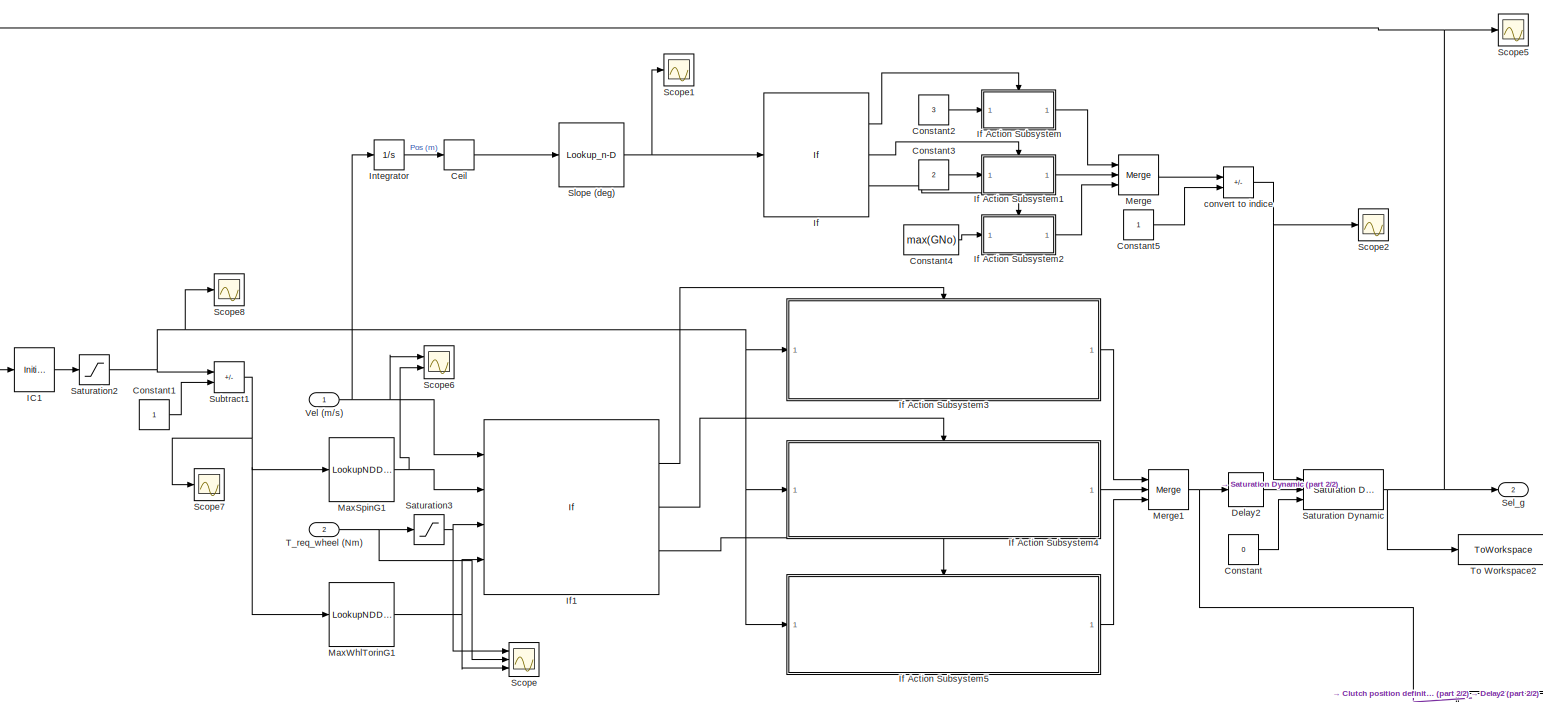
[diagram: Gear and Clutch Definition - part 1/2, central region]
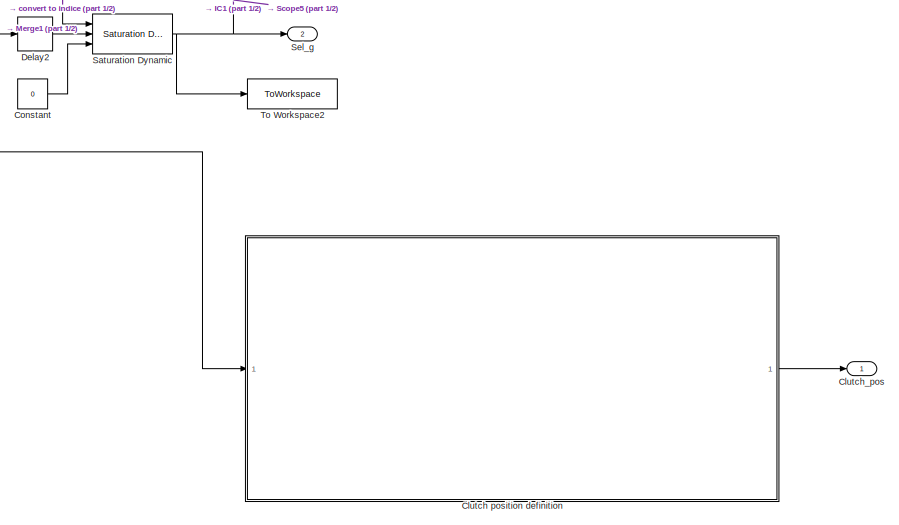
[diagram: Gear and Clutch Definition - part 2/2, bottom right region]
BLOCK [SubSystem] Gear and Clutch Definition
  Ports = [2, 2]
  RequestExecContextInheritance = off
BLOCK [Rounding] Gear and Clutch Definition/Ceil
  Operator = ceil
BLOCK [SubSystem] Gear and Clutch Definition/Clutch position definition
  Ports = [1, 1]
  RequestExecContextInheritance = off
BLOCK [Constant] Gear and Clutch Definition/Clutch position definition/Constant
BLOCK [Constant] Gear and Clutch Definition/Clutch position definition/Constant2
  Value = 0
BLOCK [Constant] Gear and Clutch Definition/Clutch position definition/Constant3
BLOCK [DataTypeConversion] Gear and Clutch Definition/Clutch position definition/Data Type Conversion
  OutDataTypeStr = double
  RndMeth = Floor
  SaturateOnIntegerOverflow = off
BLOCK [InitialCondition] Gear and Clutch Definition/Clutch position definition/IC
  Value = 0
BLOCK [SubSystem] Gear and Clutch Definition/Clutch position definition/If Action Subsystem3
  Ports = [1, 1, 0, 0, 0, 0, 0, 1]
  RequestExecContextInheritance = off
  TreatAsAtomicUnit = on
BLOCK [ActionPort] Gear and Clutch Definition/Clutch position definition/If Action Subsystem3/Action Port
  ActionPortLabel = if(u1 == u2)
BLOCK [Inport] Gear and Clutch Definition/Clutch position definition/If Action Subsystem3/CL
BLOCK [Outport] Gear and Clutch Definition/Clutch position definition/If Action Subsystem3/CLO
BLOCK [SubSystem] Gear and Clutch Definition/Clutch position definition/If Action Subsystem4
  Ports = [1, 1, 0, 0, 0, 0, 0, 1]
  RequestExecContextInheritance = off
  TreatAsAtomicUnit = on
BLOCK [ActionPort] Gear and Clutch Definition/Clutch position definition/If Action Subsystem4/Action Port
  ActionPortLabel = else
BLOCK [Inport] Gear and Clutch Definition/Clutch position definition/If Action Subsystem4/CL
BLOCK [Outport] Gear and Clutch Definition/Clutch position definition/If Action Subsystem4/CLO
BLOCK [If] Gear and Clutch Definition/Clutch position definition/If1
  IfExpression = u1 == u2
  NumInputs = 2
  Ports = [2, 2]
BLOCK [Memory] Gear and Clutch Definition/Clutch position definition/Memory
BLOCK [Merge] Gear and Clutch Definition/Clutch position definition/Merge2
  Ports = [2, 1]
BLOCK [Outport] Gear and Clutch Definition/Clutch position definition/Out1
BLOCK [RateLimiter] Gear and Clutch Definition/Clutch position definition/Rate Limiter
  FallingSlewLimit = -0.5
  RisingSlewLimit = 0.5
  SampleTimeMode = inherited
BLOCK [Scope] Gear and Clutch Definition/Clutch position definition/Scope
  Floating = off
  NumInputPorts = 2
  Ports = [2]
  ScopeSpecificationString = Simulink.scopes.TimeScopeBlockCfg('CurrentConfiguration', extmgr.ConfigurationSet(extmgr.Configuration('Core','General UI',true),extmgr.Configuration('Core','Source UI',true),extmgr.Configuration('Sources','WiredSimulink',true,'DataLoggingVariableName','ScopeData4'),extmgr.Configuration('Visuals','Time Domain',true,'SerializedDisplays',{struct('MinYLimReal','-0.125','MaxYLimReal','1.125','YLabelRe...<+1419ch>
BLOCK [Scope] Gear and Clutch Definition/Clutch position definition/Scope1
  Floating = off
  NumInputPorts = 2
  Ports = [2]
  ScopeSpecificationString = Simulink.scopes.TimeScopeBlockCfg('CurrentConfiguration', extmgr.ConfigurationSet(extmgr.Configuration('Core','General UI',true),extmgr.Configuration('Core','Source UI',true),extmgr.Configuration('Sources','WiredSimulink',true,'DataLoggingVariableName','ScopeData2'),extmgr.Configuration('Visuals','Time Domain',true,'SerializedDisplays',{struct('MinYLimReal','-0.125','MaxYLimReal','1.125','YLabelRe...<+1482ch>
BLOCK [Inport] Gear and Clutch Definition/Clutch position definition/Sel_g
BLOCK [SubSystem] Gear and Clutch Definition/Clutch position definition/Triggered Single Pulse
  Ports = [1, 1]
  RequestExecContextInheritance = off
  TreatAsAtomicUnit = on
BLOCK [SubSystem] Gear and Clutch Definition/Clutch position definition/Triggered Single Pulse/+ve edge detect
  Ports = [1, 1]
  RequestExecContextInheritance = off
BLOCK [UnitDelay] Gear and Clutch Definition/Clutch position definition/Triggered Single Pulse/+ve edge detect/Delay Input1
  Description = Store in Global RAM
  DisableCoverage = on
  HasFrameUpgradeWarning = on
  SampleTime = -1
BLOCK [RelationalOperator] Gear and Clutch Definition/Clutch position definition/Triggered Single Pulse/+ve edge detect/FixPt Relational Operator
  InputSameDT = off
  Operator = >
  OutDataTypeStr = fixdt(0, 8)
  Ports = [2, 1]
  ZeroCross = off
BLOCK [Reference] Gear and Clutch Definition/Clutch position definition/Triggered Single Pulse/+ve edge detect/Positive  REF=simulink/Logic and Bit
Operations/Compare
To Zero
  Ports = [1, 1]
  SourceBlock = simulink/Logic and Bit\nOperations/Compare\nTo Zero
  SourceProductBaseCode = SL
  SourceType = Compare To Zero
BLOCK [Outport] Gear and Clutch Definition/Clutch position definition/Triggered Single Pulse/+ve edge detect/out
BLOCK [Inport] Gear and Clutch Definition/Clutch position definition/Triggered Single Pulse/+ve edge detect/signal
BLOCK [Sum] Gear and Clutch Definition/Clutch position definition/Triggered Single Pulse/Add
  IconShape = rectangular
  Ports = [2, 1]
BLOCK [Sum] Gear and Clutch Definition/Clutch position definition/Triggered Single Pulse/Add1
  IconShape = rectangular
  Ports = [2, 1]
BLOCK [Reference] Gear and Clutch Definition/Clutch position definition/Triggered Single Pulse/Compare To Constant  REF=simulink/Logic and Bit
Operations/Compare
To Constant
  Ports = [1, 1]
  SourceBlock = simulink/Logic and Bit\nOperations/Compare\nTo Constant
  SourceProductBaseCode = SL
  SourceType = Compare To Constant
BLOCK [Constant] Gear and Clutch Definition/Clutch position definition/Triggered Single Pulse/Constant2
BLOCK [Logic] Gear and Clutch Definition/Clutch position definition/Triggered Single Pulse/Logical Operator
  AllPortsSameDT = off
  Operator = NOT
  OutDataTypeStr = boolean
  Ports = [1, 1]
BLOCK [Product] Gear and Clutch Definition/Clutch position definition/Triggered Single Pulse/Product
  Ports = [2, 1]
  RndMeth = Zero
BLOCK [Product] Gear and Clutch Definition/Clutch position definition/Triggered Single Pulse/Product1
  Ports = [2, 1]
  RndMeth = Zero
BLOCK [Product] Gear and Clutch Definition/Clutch position definition/Triggered Single Pulse/Product3
  Ports = [2, 1]
  RndMeth = Zero
BLOCK [Outport] Gear and Clutch Definition/Clutch position definition/Triggered Single Pulse/Pulse
BLOCK [Saturate] Gear and Clutch Definition/Clutch position definition/Triggered Single Pulse/Saturation
  LowerLimit = 0
  UpperLimit = 1
BLOCK [Inport] Gear and Clutch Definition/Clutch position definition/Triggered Single Pulse/Trigger
BLOCK [UnitDelay] Gear and Clutch Definition/Clutch position definition/Triggered Single Pulse/Unit Delay
  HasFrameUpgradeWarning = on
  SampleTime = -1
BLOCK [UnitDelay] Gear and Clutch Definition/Clutch position definition/Triggered Single Pulse/Unit Delay1
  HasFrameUpgradeWarning = on
  SampleTime = -1
BLOCK [Logic] Gear and Clutch Definition/Clutch position definition/XOR
  AllPortsSameDT = off
  IconShape = distinctive
  Operator = XOR
  OutDataTypeStr = boolean
  Ports = [2, 1]
BLOCK [Outport] Gear and Clutch Definition/Clutch_pos
BLOCK [Constant] Gear and Clutch Definition/Constant
  Value = 0
BLOCK [Constant] Gear and Clutch Definition/Constant1
BLOCK [Constant] Gear and Clutch Definition/Constant2
  Value = 3
BLOCK [Constant] Gear and Clutch Definition/Constant3
  Value = 2
BLOCK [Constant] Gear and Clutch Definition/Constant4
  Value = max(GNo)
BLOCK [Constant] Gear and Clutch Definition/Constant5
BLOCK [Delay] Gear and Clutch Definition/Delay2
  DelayLength = 1
  InputPortMap = u0
  Ports = [1, 1]
BLOCK [InitialCondition] Gear and Clutch Definition/IC1
BLOCK [If] Gear and Clutch Definition/If
  ElseIfExpressions = u1 > 5.5
  IfExpression = u1 > 2.8
  Ports = [1, 3]
BLOCK [SubSystem] Gear and Clutch Definition/If Action Subsystem
  Ports = [1, 1, 0, 0, 0, 0, 0, 1]
  RequestExecContextInheritance = off
  TreatAsAtomicUnit = on
BLOCK [ActionPort] Gear and Clutch Definition/If Action Subsystem/Action Port
  ActionPortLabel = if(u1 > 2.8)
BLOCK [Inport] Gear and Clutch Definition/If Action Subsystem/In1
BLOCK [Outport] Gear and Clutch Definition/If Action Subsystem/Out1
BLOCK [SubSystem] Gear and Clutch Definition/If Action Subsystem1
  Ports = [1, 1, 0, 0, 0, 0, 0, 1]
  RequestExecContextInheritance = off
  TreatAsAtomicUnit = on
BLOCK [ActionPort] Gear and Clutch Definition/If Action Subsystem1/Action Port
  ActionPortLabel = elseif(u1 > 5.5)
BLOCK [Inport] Gear and Clutch Definition/If Action Subsystem1/In1
BLOCK [Outport] Gear and Clutch Definition/If Action Subsystem1/Out1
BLOCK [SubSystem] Gear and Clutch Definition/If Action Subsystem2
  Ports = [1, 1, 0, 0, 0, 0, 0, 1]
  RequestExecContextInheritance = off
  TreatAsAtomicUnit = on
BLOCK [ActionPort] Gear and Clutch Definition/If Action Subsystem2/Action Port
  ActionPortLabel = else
BLOCK [Inport] Gear and Clutch Definition/If Action Subsystem2/In1
BLOCK [Outport] Gear and Clutch Definition/If Action Subsystem2/Out1
BLOCK [SubSystem] Gear and Clutch Definition/If Action Subsystem3
  Ports = [1, 1, 0, 0, 0, 0, 0, 1]
  RequestExecContextInheritance = off
  TreatAsAtomicUnit = on
BLOCK [ActionPort] Gear and Clutch Definition/If Action Subsystem3/Action Port
  ActionPortLabel = if(u1 >= u2 & u3 < u4)
BLOCK [Sum] Gear and Clutch Definition/If Action Subsystem3/Add
  IconShape = rectangular
  Ports = [2, 1]
BLOCK [Constant] Gear and Clutch Definition/If Action Subsystem3/Constant
BLOCK [Outport] Gear and Clutch Definition/If Action Subsystem3/Increased gear
BLOCK [Inport] Gear and Clutch Definition/If Action Subsystem3/Selected Gear //dt
BLOCK [SubSystem] Gear and Clutch Definition/If Action Subsystem4
  Ports = [1, 1, 0, 0, 0, 0, 0, 1]
  RequestExecContextInheritance = off
  TreatAsAtomicUnit = on
BLOCK [ActionPort] Gear and Clutch Definition/If Action Subsystem4/Action Port
  ActionPortLabel = elseif(u3 >= u4 & u1 < u2)
BLOCK [Constant] Gear and Clutch Definition/If Action Subsystem4/Constant
BLOCK [Outport] Gear and Clutch Definition/If Action Subsystem4/Decreased gear
BLOCK [Inport] Gear and Clutch Definition/If Action Subsystem4/Selected Gear //dt
BLOCK [Sum] Gear and Clutch Definition/If Action Subsystem4/Subtract
  IconShape = rectangular
  Inputs = +-
  Ports = [2, 1]
BLOCK [SubSystem] Gear and Clutch Definition/If Action Subsystem5
  Ports = [1, 1, 0, 0, 0, 0, 0, 1]
  RequestExecContextInheritance = off
  TreatAsAtomicUnit = on
BLOCK [ActionPort] Gear and Clutch Definition/If Action Subsystem5/Action Port
  ActionPortLabel = else
BLOCK [Outport] Gear and Clutch Definition/If Action Subsystem5/Out1
BLOCK [Inport] Gear and Clutch Definition/If Action Subsystem5/Selected Gear Ratio //dt
BLOCK [If] Gear and Clutch Definition/If1
  ElseIfExpressions = u3 >= u4 & u1 < u2
  IfExpression = u1 >= u2 & u3 < u4
  NumInputs = 4
  Ports = [4, 3]
BLOCK [Integrator] Gear and Clutch Definition/Integrator
  Ports = [1, 1]
BLOCK [LookupNDDirect] Gear and Clutch Definition/MaxSpinG1
  NumberOfTableDimensions = 1
  Ports = [1, 1]
  Table = MaxSpinG
BLOCK [LookupNDDirect] Gear and Clutch Definition/MaxWhlTorinG1
  NumberOfTableDimensions = 1
  Ports = [1, 1]
  Table = MaxWhlTorinG
BLOCK [Merge] Gear and Clutch Definition/Merge
  Inputs = 3
  Ports = [3, 1]
BLOCK [Merge] Gear and Clutch Definition/Merge1
  Inputs = 3
  Ports = [3, 1]
BLOCK [Reference] Gear and Clutch Definition/Saturation Dynamic  REF=simulink/Discontinuities/Saturation
Dynamic
  Ports = [3, 1]
  SourceBlock = simulink/Discontinuities/Saturation\nDynamic
  SourceProductBaseCode = SL
  SourceType = Saturation Dynamic
BLOCK [Saturate] Gear and Clutch Definition/Saturation2
  LowerLimit = 0
  UpperLimit = max(GNo)
BLOCK [Saturate] Gear and Clutch Definition/Saturation3
  LowerLimit = 0
  UpperLimit = inf
BLOCK [Scope] Gear and Clutch Definition/Scope
  Floating = off
  NumInputPorts = 3
  Ports = [3]
  ScopeSpecificationString = Simulink.scopes.TimeScopeBlockCfg('CurrentConfiguration', extmgr.ConfigurationSet(extmgr.Configuration('Core','General UI',true),extmgr.Configuration('Core','Source UI',true),extmgr.Configuration('Sources','WiredSimulink',true,'DataLoggingVariableName','ScopeData13'),extmgr.Configuration('Visuals','Time Domain',true,'SerializedDisplays',{struct('MinYLimReal','-1850.48865','MaxYLimReal','28388.4898...<+1526ch>
BLOCK [Scope] Gear and Clutch Definition/Scope1
  Floating = off
  NumInputPorts = 1
  Ports = [1]
  ScopeSpecificationString = Simulink.scopes.TimeScopeBlockCfg('CurrentConfiguration', extmgr.ConfigurationSet(extmgr.Configuration('Core','General UI',true),extmgr.Configuration('Core','Source UI',true),extmgr.Configuration('Sources','WiredSimulink',true,'DataLoggingVariableName','ScopeData12'),extmgr.Configuration('Visuals','Time Domain',true,'SerializedDisplays',{struct('MinYLimReal','5.70273','MaxYLimReal','5.72102','YLab...<+1388ch>
BLOCK [Scope] Gear and Clutch Definition/Scope2
  Floating = off
  NumInputPorts = 1
  Ports = [1]
  ScopeSpecificationString = Simulink.scopes.TimeScopeBlockCfg('CurrentConfiguration', extmgr.ConfigurationSet(extmgr.Configuration('Core','General UI',true),extmgr.Configuration('Core','Source UI',true),extmgr.Configuration('Sources','WiredSimulink',true,'DataLoggingVariableName','ScopeData18'),extmgr.Configuration('Visuals','Time Domain',true,'SerializedDisplays',{struct('MinYLimReal','2.00000','MaxYLimReal','4.00000','YLab...<+1363ch>
BLOCK [Scope] Gear and Clutch Definition/Scope5
  Floating = off
  NumInputPorts = 1
  Ports = [1]
  ScopeSpecificationString = Simulink.scopes.TimeScopeBlockCfg('CurrentConfiguration', extmgr.ConfigurationSet(extmgr.Configuration('Core','General UI',true),extmgr.Configuration('Core','Source UI',true),extmgr.Configuration('Sources','WiredSimulink',true,'DataLoggingVariableName','ScopeData2'),extmgr.Configuration('Visuals','Time Domain',true,'SerializedDisplays',{struct('MinYLimReal','-0.5','MaxYLimReal','4.5','YLabelReal',...<+1384ch>
BLOCK [Scope] Gear and Clutch Definition/Scope6
  Floating = off
  NumInputPorts = 2
  Ports = [2]
  ScopeSpecificationString = Simulink.scopes.TimeScopeBlockCfg('CurrentConfiguration', extmgr.ConfigurationSet(extmgr.Configuration('Core','General UI',true),extmgr.Configuration('Core','Source UI',true),extmgr.Configuration('Sources','WiredSimulink',true,'DataLoggingVariableName','ScopeData3'),extmgr.Configuration('Visuals','Time Domain',true,'SerializedDisplays',{struct('MinYLimReal','-1.90944','MaxYLimReal','17.18495','YLa...<+1384ch>
BLOCK [Scope] Gear and Clutch Definition/Scope7
  Floating = off
  NumInputPorts = 1
  Ports = [1]
  ScopeSpecificationString = Simulink.scopes.TimeScopeBlockCfg('CurrentConfiguration', extmgr.ConfigurationSet(extmgr.Configuration('Core','General UI',true),extmgr.Configuration('Core','Source UI',true),extmgr.Configuration('Sources','WiredSimulink',true,'DataLoggingVariableName','ScopeData7'),extmgr.Configuration('Visuals','Time Domain',true,'SerializedDisplays',{struct('MinYLimReal','-0.375','MaxYLimReal','3.375','YLabelRe...<+1386ch>
BLOCK [Scope] Gear and Clutch Definition/Scope8
  Floating = off
  NumInputPorts = 1
  Ports = [1]
  ScopeSpecificationString = Simulink.scopes.TimeScopeBlockCfg('CurrentConfiguration', extmgr.ConfigurationSet(extmgr.Configuration('Core','General UI',true),extmgr.Configuration('Core','Source UI',true),extmgr.Configuration('Sources','WiredSimulink',true,'DataLoggingVariableName','ScopeData9'),extmgr.Configuration('Visuals','Time Domain',true,'SerializedDisplays',{struct('MinYLimReal','0.625','MaxYLimReal','4.375','YLabelRea...<+1382ch>
BLOCK [Outport] Gear and Clutch Definition/Sel_g
  Port = 2
BLOCK [Lookup_n-D] Gear and Clutch Definition/Slope (deg)
  BreakpointsForDimension1 = 1: length(IntpSlope)
  InputPortMap = u0
  InternalRulePriority = Speed
  NumberOfTableDimensions = 1
  Ports = [1, 1]
  RndMeth = Simplest
  Table = IntpSlope
BLOCK [Sum] Gear and Clutch Definition/Subtract1
  IconShape = rectangular
  Inputs = +-
  Ports = [2, 1]
BLOCK [Inport] Gear and Clutch Definition/T_req_wheel (Nm)
  Port = 2
BLOCK [ToWorkspace] Gear and Clutch Definition/To Workspace2
  FixptAsFi = on
  MaxDataPoints = inf
  Ports = [1]
  SampleTime = -1
  SaveFormat = Timeseries
  VariableName = Sel_g
BLOCK [Inport] Gear and Clutch Definition/Vel (m//s)
BLOCK [Sum] Gear and Clutch Definition/convert to indice
  IconShape = rectangular
  Inputs = +-
  Ports = [2, 1]
BLOCK [Scope] Scope
  Floating = off
  NumInputPorts = 1
  Ports = [1]
  ScopeSpecificationString = Simulink.scopes.TimeScopeBlockCfg('CurrentConfiguration', extmgr.ConfigurationSet(extmgr.Configuration('Core','General UI',true),extmgr.Configuration('Core','Source UI',true),extmgr.Configuration('Sources','WiredSimulink',true,'DataLoggingVariableName','ScopeData2'),extmgr.Configuration('Visuals','Time Domain',true,'SerializedDisplays',{struct('MinYLimReal','-2.98126','MaxYLimReal','15.76335','YLa...<+1440ch>
BLOCK [Scope] Scope2
  Floating = off
  NumInputPorts = 1
  Ports = [1]
  ScopeSpecificationString = Simulink.scopes.TimeScopeBlockCfg('CurrentConfiguration', extmgr.ConfigurationSet(extmgr.Configuration('Core','General UI',true),extmgr.Configuration('Core','Source UI',true),extmgr.Configuration('Sources','WiredSimulink',true,'DataLoggingVariableName','ScopeData7'),extmgr.Configuration('Visuals','Time Domain',true,'SerializedDisplays',{struct('MinYLimReal','-986.28571','MaxYLimReal','13951.03543'...<+1471ch>
BLOCK [ToWorkspace] To Workspace
  FixptAsFi = on
  MaxDataPoints = inf
  Ports = [1]
  SampleTime = -1
  SaveFormat = Timeseries
  VariableName = time
BLOCK [SubSystem] Vehicle Resistances
  Ports = [3, 1]
  RequestExecContextInheritance = off
BLOCK [SubSystem] Vehicle Resistances/Acceleration Constant Calculator
  Ports = [1, 1]
  RequestExecContextInheritance = off
BLOCK [Lookup_n-D] Vehicle Resistances/Acceleration Constant Calculator/1-D Lookup Table
  BreakpointsForDimension1 = GNo
  InputPortMap = u0
  InternalRulePriority = Speed
  NumberOfTableDimensions = 1
  Ports = [1, 1]
  RndMeth = Simplest
  Table = etaGRa
BLOCK [Lookup_n-D] Vehicle Resistances/Acceleration Constant Calculator/1-D Lookup Table1
  BreakpointsForDimension1 = GNo
  InputPortMap = u0
  InternalRulePriority = Speed
  NumberOfTableDimensions = 1
  Ports = [1, 1]
  RndMeth = Simplest
  Table = GRa
BLOCK [Sum] Vehicle Resistances/Acceleration Constant Calculator/Add
  IconShape = rectangular
  Ports = [2, 1]
BLOCK [Sum] Vehicle Resistances/Acceleration Constant Calculator/Add1
  IconShape = rectangular
  Ports = [2, 1]
BLOCK [Sum] Vehicle Resistances/Acceleration Constant Calculator/Add2
  IconShape = rectangular
  Ports = [2, 1]
BLOCK [Constant] Vehicle Resistances/Acceleration Constant Calculator/Constant
BLOCK [Constant] Vehicle Resistances/Acceleration Constant Calculator/Constant1
  Value = NoWhlFA
BLOCK [Constant] Vehicle Resistances/Acceleration Constant Calculator/Constant2
  Value = NoWhlRA
BLOCK [Constant] Vehicle Resistances/Acceleration Constant Calculator/Constant3
BLOCK [LookupNDDirect] Vehicle Resistances/Acceleration Constant Calculator/Direct Lookup Table (n-D)
  NumberOfTableDimensions = 1
  Ports = [1, 1]
  Table = GRa
BLOCK [Gain] Vehicle Resistances/Acceleration Constant Calculator/Gain3
  Gain = Jk
BLOCK [Gain] Vehicle Resistances/Acceleration Constant Calculator/Gain4
  Gain = 1/100
BLOCK [Gain] Vehicle Resistances/Acceleration Constant Calculator/Gain5
  Gain = Jm
BLOCK [Gain] Vehicle Resistances/Acceleration Constant Calculator/Gain6
  Gain = 1/(Mtot*DynRolRad)
BLOCK [Product] Vehicle Resistances/Acceleration Constant Calculator/Product
  Ports = [2, 1]
BLOCK [Saturate] Vehicle Resistances/Acceleration Constant Calculator/Saturation1
  LowerLimit = 0
  UpperLimit = inf
BLOCK [Scope] Vehicle Resistances/Acceleration Constant Calculator/Scope
  Floating = off
  NumInputPorts = 1
  Ports = [1]
  ScopeSpecificationString = Simulink.scopes.TimeScopeBlockCfg('CurrentConfiguration', extmgr.ConfigurationSet(extmgr.Configuration('Core','General UI',true),extmgr.Configuration('Core','Source UI',true),extmgr.Configuration('Sources','WiredSimulink',true,'DataLoggingVariableName','ScopeData16'),extmgr.Configuration('Visuals','Time Domain',true,'SerializedDisplays',{struct('MinYLimReal','0.9956','MaxYLimReal','1.15998','YLabe...<+1357ch>
BLOCK [Scope] Vehicle Resistances/Acceleration Constant Calculator/Scope1
  Floating = off
  NumInputPorts = 1
  Ports = [1]
  ScopeSpecificationString = Simulink.scopes.TimeScopeBlockCfg('CurrentConfiguration', extmgr.ConfigurationSet(extmgr.Configuration('Core','General UI',true),extmgr.Configuration('Core','Source UI',true),extmgr.Configuration('Sources','WiredSimulink',true,'DataLoggingVariableName','ScopeData20'),extmgr.Configuration('Visuals','Time Domain',true,'SerializedDisplays',{struct('MinYLimReal','0.465','MaxYLimReal','10.615','YLabelR...<+1395ch>
BLOCK [Inport] Vehicle Resistances/Acceleration Constant Calculator/Sel_g
BLOCK [Math] Vehicle Resistances/Acceleration Constant Calculator/Square
  Operator = square
  Ports = [1, 1]
BLOCK [Sum] Vehicle Resistances/Acceleration Constant Calculator/Subtract
  IconShape = rectangular
  Inputs = +-
  Ports = [2, 1]
BLOCK [Outport] Vehicle Resistances/Acceleration Constant Calculator/acceleration resistance coefficient //dt
BLOCK [Sum] Vehicle Resistances/Add
  IconShape = rectangular
  Inputs = +++
  Ports = [3, 1]
BLOCK [Sum] Vehicle Resistances/Add1
  IconShape = rectangular
  Inputs = +++
  Ports = [3, 1]
BLOCK [Sum] Vehicle Resistances/Add2
  IconShape = rectangular
  Ports = [2, 1]
BLOCK [Constant] Vehicle Resistances/Air Density Rho
  Value = rho
BLOCK [Constant] Vehicle Resistances/Constant
  Value = 0
BLOCK [Reference] Vehicle Resistances/Degrees to Radians  REF=simulink_extras/Transformations/Degrees to
Radians
  Ports = [1, 1]
  SourceBlock = simulink_extras/Transformations/Degrees to\nRadians
  SourceProductBaseCode = SL
  SourceType = DegreesToRadians
BLOCK [Derivative] Vehicle Resistances/Derivative
BLOCK [Display] Vehicle Resistances/Display
  Decimation = 1
  Ports = [1]
BLOCK [Display] Vehicle Resistances/Display1
  Decimation = 1
  Ports = [1]
BLOCK [Constant] Vehicle Resistances/Drag Coefficient Cx
  Value = Cx
BLOCK [Constant] Vehicle Resistances/Expendable Mass Me
  Value = Me
BLOCK [Outport] Vehicle Resistances/F_res_start (N)
BLOCK [Constant] Vehicle Resistances/Frontal Area Sx
  Value = Sx
BLOCK [Gain] Vehicle Resistances/Gain
  Gain = 1/2
BLOCK [Gain] Vehicle Resistances/Gain1
  Gain = g
BLOCK [Gain] Vehicle Resistances/Gain2
  Gain = g
BLOCK [If] Vehicle Resistances/If
  Ports = [1, 2]
BLOCK [SubSystem] Vehicle Resistances/If Action Subsystem
  Ports = [1, 1, 0, 0, 0, 0, 0, 1]
  RequestExecContextInheritance = off
  TreatAsAtomicUnit = on
BLOCK [ActionPort] Vehicle Resistances/If Action Subsystem/Action Port
  ActionPortLabel = if(u1 > 0)
BLOCK [Inport] Vehicle Resistances/If Action Subsystem/In1
BLOCK [Outport] Vehicle Resistances/If Action Subsystem/Out1
BLOCK [SubSystem] Vehicle Resistances/If Action Subsystem1
  Ports = [1, 1, 0, 0, 0, 0, 0, 1]
  RequestExecContextInheritance = off
  TreatAsAtomicUnit = on
BLOCK [ActionPort] Vehicle Resistances/If Action Subsystem1/Action Port
  ActionPortLabel = else
BLOCK [Inport] Vehicle Resistances/If Action Subsystem1/In1
BLOCK [Outport] Vehicle Resistances/If Action Subsystem1/Out1
BLOCK [Memory] Vehicle Resistances/Memory
BLOCK [Merge] Vehicle Resistances/Merge
  Ports = [2, 1]
BLOCK [Inport] Vehicle Resistances/Pos (m)
  Port = 2
BLOCK [Product] Vehicle Resistances/Product
  Inputs = 4
  Ports = [4, 1]
BLOCK [Product] Vehicle Resistances/Product1
  Ports = [2, 1]
BLOCK [Product] Vehicle Resistances/Product2
  Inputs = 3
  Ports = [3, 1]
BLOCK [Gain] Vehicle Resistances/Rolling Resitance coeff
  Gain = Fr
BLOCK [Scope] Vehicle Resistances/Scope
  Floating = off
  NumInputPorts = 5
  Ports = [5]
  ScopeSpecificationString = Simulink.scopes.TimeScopeBlockCfg('CurrentConfiguration', extmgr.ConfigurationSet(extmgr.Configuration('Core','General UI',true),extmgr.Configuration('Core','Source UI',true),extmgr.Configuration('Sources','WiredSimulink',true,'DataLoggingVariableName','ScopeData16'),extmgr.Configuration('Visuals','Time Domain',true,'SerializedDisplays',{struct('MinYLimReal','-9069.56836','MaxYLimReal','15617.5837...<+1631ch>
BLOCK [Scope] Vehicle Resistances/Scope1
  Floating = off
  NumInputPorts = 1
  Ports = [1]
  ScopeSpecificationString = Simulink.scopes.TimeScopeBlockCfg('CurrentConfiguration', extmgr.ConfigurationSet(extmgr.Configuration('Core','General UI',true),extmgr.Configuration('Core','Source UI',true),extmgr.Configuration('Sources','WiredSimulink',true,'DataLoggingVariableName','ScopeData10'),extmgr.Configuration('Visuals','Time Domain',true,'SerializedDisplays',{struct('MinYLimReal','-1.15217','MaxYLimReal','10.36951','YL...<+1417ch>
BLOCK [Scope] Vehicle Resistances/Scope2
  Floating = off
  NumInputPorts = 1
  Ports = [1]
  ScopeSpecificationString = Simulink.scopes.TimeScopeBlockCfg('CurrentConfiguration', extmgr.ConfigurationSet(extmgr.Configuration('Core','General UI',true),extmgr.Configuration('Core','Source UI',true),extmgr.Configuration('Sources','WiredSimulink',true,'DataLoggingVariableName','ScopeData14'),extmgr.Configuration('Visuals','Time Domain',true,'SerializedDisplays',{struct('MinYLimReal','-3.9625','MaxYLimReal','4.6625','YLabe...<+1365ch>
BLOCK [Scope] Vehicle Resistances/Scope3
  Floating = off
  NumInputPorts = 1
  Ports = [1]
  ScopeSpecificationString = Simulink.scopes.TimeScopeBlockCfg('CurrentConfiguration', extmgr.ConfigurationSet(extmgr.Configuration('Core','General UI',true),extmgr.Configuration('Core','Source UI',true),extmgr.Configuration('Sources','WiredSimulink',true,'DataLoggingVariableName','ScopeData15'),extmgr.Configuration('Visuals','Time Domain',true,'SerializedDisplays',{struct('MinYLimReal','-1.36806','MaxYLimReal','2.45622','YLa...<+1397ch>
BLOCK [Inport] Vehicle Resistances/Sel_g
BLOCK [Trigonometry] Vehicle Resistances/Sin
  Ports = [1, 1]
BLOCK [Lookup_n-D] Vehicle Resistances/Slope (deg)
  BreakpointsForDimension1 = 1: length(IntpSlope)
  InputPortMap = u0
  InternalRulePriority = Speed
  NumberOfTableDimensions = 1
  Ports = [1, 1]
  RndMeth = Simplest
  Table = IntpSlope
BLOCK [Math] Vehicle Resistances/Square
  Operator = square
  Ports = [1, 1]
BLOCK [Constant] Vehicle Resistances/Trailer Mass Mt
  Value = Mt
BLOCK [Constant] Vehicle Resistances/Vehicle Mass Mv
  Value = Mv
BLOCK [Inport] Vehicle Resistances/Vel (m//s)
  Port = 3
BLOCK [SubSystem] W_engine Control
  Ports = [4, 3]
  RequestExecContextInheritance = off
BLOCK [Sum] W_engine Control/Add1
  IconShape = rectangular
  Ports = [2, 1]
BLOCK [Sum] W_engine Control/Add2
  IconShape = rectangular
  Ports = [2, 1]
BLOCK [Constant] W_engine Control/Constant
BLOCK [Derivative] W_engine Control/Derivative
BLOCK [LookupNDDirect] W_engine Control/Direct Lookup Table (n-D)
  NumberOfTableDimensions = 1
  Ports = [1, 1]
  Table = GRa
BLOCK [Product] W_engine Control/Divide1
  Inputs = */
  Ports = [2, 1]
BLOCK [Inport] W_engine Control/F_acc (N)
  Port = 2
BLOCK [Inport] W_engine Control/F_res (N)
  Port = 3
BLOCK [Gain] W_engine Control/Gain
  Gain = 60
BLOCK [Gain] W_engine Control/Gain1
  Gain = 0.1047
BLOCK [Gain] W_engine Control/Gain11
  Gain = DynRolRad
BLOCK [Gain] W_engine Control/Gain6
  Gain = 1/FDR
BLOCK [Gain] W_engine Control/Gain7
  Gain = 1/(2*pi*DynRolRad)
BLOCK [Gain] W_engine Control/Gain8
  Gain = FDR
BLOCK [InitialCondition] W_engine Control/IC
  Value = 500
BLOCK [If] W_engine Control/If
  IfExpression = u1 == 0
  Ports = [1, 2]
BLOCK [SubSystem] W_engine Control/If Action Subsystem
  Ports = [1, 1, 0, 0, 0, 0, 0, 1]
  RequestExecContextInheritance = off
  TreatAsAtomicUnit = on
BLOCK [ActionPort] W_engine Control/If Action Subsystem/Action Port
  ActionPortLabel = if(u1 == 0)
BLOCK [Inport] W_engine Control/If Action Subsystem/In1
BLOCK [Outport] W_engine Control/If Action Subsystem/Out1
BLOCK [SubSystem] W_engine Control/If Action Subsystem1
  Ports = [1, 1, 0, 0, 0, 0, 0, 1]
  RequestExecContextInheritance = off
  TreatAsAtomicUnit = on
BLOCK [ActionPort] W_engine Control/If Action Subsystem1/Action Port
  ActionPortLabel = else
BLOCK [Inport] W_engine Control/If Action Subsystem1/In1
BLOCK [Outport] W_engine Control/If Action Subsystem1/Out1
BLOCK [Lookup_n-D] W_engine Control/Lookup Throttle position
  BreakpointsForDimension1 = MaxTorValThrot
  InputPortMap = u0
  InternalRulePriority = Speed
  NumberOfTableDimensions = 1
  Ports = [1, 1]
  RndMeth = Simplest
  Table = ThrotPos
BLOCK [Product] W_engine Control/Product3
  Ports = [2, 1]
BLOCK [Saturate] W_engine Control/Saturation
  LowerLimit = 0
  UpperLimit = inf
BLOCK [Saturate] W_engine Control/Saturation1
  LowerLimit = 0
  UpperLimit = inf
BLOCK [Saturate] W_engine Control/Saturation2
  LowerLimit = 0
  UpperLimit = 1
BLOCK [Scope] W_engine Control/Scope
  Floating = off
  NumInputPorts = 1
  Ports = [1]
  ScopeSpecificationString = Simulink.scopes.TimeScopeBlockCfg('CurrentConfiguration', extmgr.ConfigurationSet(extmgr.Configuration('Core','General UI',true),extmgr.Configuration('Core','Source UI',true),extmgr.Configuration('Sources','WiredSimulink',true,'DataLoggingVariableName','ScopeData11'),extmgr.Configuration('Visuals','Time Domain',true,'SerializedDisplays',{struct('MinYLimReal','-121.81924','MaxYLimReal','142.04638',...<+1459ch>
BLOCK [Scope] W_engine Control/Scope1
  Floating = off
  NumInputPorts = 1
  Ports = [1]
  ScopeSpecificationString = Simulink.scopes.TimeScopeBlockCfg('CurrentConfiguration', extmgr.ConfigurationSet(extmgr.Configuration('Core','General UI',true),extmgr.Configuration('Core','Source UI',true),extmgr.Configuration('Sources','WiredSimulink',true,'DataLoggingVariableName','ScopeData6'),extmgr.Configuration('Visuals','Time Domain',true,'SerializedDisplays',{struct('MinYLimReal','0.8275','MaxYLimReal','7.3525','YLabelR...<+1399ch>
BLOCK [Scope] W_engine Control/Scope2
  Floating = off
  NumInputPorts = 1
  Ports = [1]
  ScopeSpecificationString = Simulink.scopes.TimeScopeBlockCfg('CurrentConfiguration', extmgr.ConfigurationSet(extmgr.Configuration('Core','General UI',true),extmgr.Configuration('Core','Source UI',true),extmgr.Configuration('Sources','WiredSimulink',true,'DataLoggingVariableName','ScopeData5'),extmgr.Configuration('Visuals','Time Domain',true,'SerializedDisplays',{struct('MinYLimReal','-0.125','MaxYLimReal','1.125','YLabelRe...<+1457ch>
BLOCK [Scope] W_engine Control/Scope3
  Floating = off
  NumInputPorts = 1
  Ports = [1]
  ScopeSpecificationString = Simulink.scopes.TimeScopeBlockCfg('CurrentConfiguration', extmgr.ConfigurationSet(extmgr.Configuration('Core','General UI',true),extmgr.Configuration('Core','Source UI',true),extmgr.Configuration('Sources','WiredSimulink',true,'DataLoggingVariableName','ScopeData1'),extmgr.Configuration('Visuals','Time Domain',true,'SerializedDisplays',{struct('MinYLimReal','-0.63991','MaxYLimReal','5.75921','YLab...<+1445ch>
BLOCK [Scope] W_engine Control/Scope4
  Floating = off
  NumInputPorts = 2
  Ports = [2]
  ScopeSpecificationString = Simulink.scopes.TimeScopeBlockCfg('CurrentConfiguration', extmgr.ConfigurationSet(extmgr.Configuration('Core','General UI',true),extmgr.Configuration('Core','Source UI',true),extmgr.Configuration('Sources','WiredSimulink',true,'DataLoggingVariableName','ScopeData16'),extmgr.Configuration('Visuals','Time Domain',true,'SerializedDisplays',{struct('MinYLimReal','-204935121213757.59375','MaxYLimReal',...<+1618ch>
BLOCK [Scope] W_engine Control/Scope5
  Floating = off
  NumInputPorts = 1
  Ports = [1]
  ScopeSpecificationString = Simulink.scopes.TimeScopeBlockCfg('CurrentConfiguration', extmgr.ConfigurationSet(extmgr.Configuration('Core','General UI',true),extmgr.Configuration('Core','Source UI',true),extmgr.Configuration('Sources','WiredSimulink',true,'DataLoggingVariableName','ScopeData8'),extmgr.Configuration('Visuals','Time Domain',true,'SerializedDisplays',{struct('MinYLimReal','-604.55497','MaxYLimReal','5440.99469',...<+1470ch>
BLOCK [Inport] W_engine Control/Sel_g
  Port = 4
BLOCK [Sum] W_engine Control/Subtract
  IconShape = rectangular
  Inputs = +-
  Ports = [2, 1]
BLOCK [Outport] W_engine Control/T_req_wheel (Nm)
BLOCK [Outport] W_engine Control/Throt_Pos
  Port = 3
BLOCK [ToWorkspace] W_engine Control/To Workspace1
  FixptAsFi = on
  MaxDataPoints = inf
  Ports = [1]
  SampleTime = -1
  SaveFormat = Timeseries
  VariableName = T_req
BLOCK [Inport] W_engine Control/Vel (m//s)
BLOCK [Outport] W_engine Control/W_engine_inp (rot//min)
  Port = 2
BLOCK [Gain] W_engine Control/etaClutch1
  Gain = 1/etaClutch
ANNOTATION Acc//Dec Control/Look Ahead Braking Model: If switch control val is 1: LAB Disabled If switch control val is 0: LAB enabled
ANNOTATION Gear and Clutch Definition/Clutch position definition/Triggered Single Pulse/+ve edge detect: Edge
LINE Acc//Dec Control/Ceil:1 -> Acc//Dec Control/Max Speed Profile (m//s):1
LINE Acc//Dec Control/Constant3:1 -> Acc//Dec Control/Switch4:1
LINE Acc//Dec Control/Constant:1 -> Acc//Dec Control/If Action Subsystem2:1
NET Acc//Dec Control/Gain2:1 -> Acc//Dec Control/DEC1:1, Acc//Dec Control/F_brake (N):1
NET Acc//Dec Control/Gain3:1 -> Acc//Dec Control/ACC1:2, Acc//Dec Control/PID Controller1:1
LINE Acc//Dec Control/If Action Subsystem/Acceleration:1 -> Acc//Dec Control/If Action Subsystem/Out1:1
LINE Acc//Dec Control/If Action Subsystem/Current Speed:1 -> Acc//Dec Control/If Action Subsystem/Gain:1
LINE Acc//Dec Control/If Action Subsystem/Gain:1 -> Acc//Dec Control/If Action Subsystem/Acceleration:1
LINE Acc//Dec Control/If Action Subsystem1/Current Speed:1 -> Acc//Dec Control/If Action Subsystem1/Gain:1
LINE Acc//Dec Control/If Action Subsystem1/Deceleration:1 -> Acc//Dec Control/If Action Subsystem1/Out1:1
LINE Acc//Dec Control/If Action Subsystem1/Gain:1 -> Acc//Dec Control/If Action Subsystem1/Deceleration:1
LINE Acc//Dec Control/If Action Subsystem1:1 -> Acc//Dec Control/Merge:2
LINE Acc//Dec Control/If Action Subsystem2/Current Speed:1 -> Acc//Dec Control/If Action Subsystem2/Out1:1
LINE Acc//Dec Control/If Action Subsystem2:1 -> Acc//Dec Control/Merge:3
LINE Acc//Dec Control/If Action Subsystem:1 -> Acc//Dec Control/Merge:1
LINE Acc//Dec Control/If:1 -> Acc//Dec Control/If Action Subsystem:ifaction
LINE Acc//Dec Control/If:2 -> Acc//Dec Control/If Action Subsystem1:ifaction
LINE Acc//Dec Control/If:3 -> Acc//Dec Control/If Action Subsystem2:ifaction
LINE Acc//Dec Control/Look Ahead Braking Model/1-D Lookup Table:1 -> Acc//Dec Control/Look Ahead Braking Model/Gain:1
LINE Acc//Dec Control/Look Ahead Braking Model/Add3:1 -> Acc//Dec Control/Look Ahead Braking Model/upcoming speed (m//s):1
LINE Acc//Dec Control/Look Ahead Braking Model/Ceil1:1 -> Acc//Dec Control/Look Ahead Braking Model/Segment number:1
NET Acc//Dec Control/Look Ahead Braking Model/Ceil:1 -> Acc//Dec Control/Look Ahead Braking Model/Add3:1, Acc//Dec Control/Look Ahead Braking Model/SCP:1
LINE Acc//Dec Control/Look Ahead Braking Model/Constant1:1 -> Acc//Dec Control/Look Ahead Braking Model/If Action Subsystem1:1
LINE Acc//Dec Control/Look Ahead Braking Model/Constant2:1 -> Acc//Dec Control/Look Ahead Braking Model/If Action Subsystem2:1
LINE Acc//Dec Control/Look Ahead Braking Model/Constant3:1 -> Acc//Dec Control/Look Ahead Braking Model/If Action Subsystem3:1
LINE Acc//Dec Control/Look Ahead Braking Model/Constant5:1 -> Acc//Dec Control/Look Ahead Braking Model/Switch:1
LINE Acc//Dec Control/Look Ahead Braking Model/Constant:1 -> Acc//Dec Control/Look Ahead Braking Model/Add3:2
LINE Acc//Dec Control/Look Ahead Braking Model/Divide:1 -> Acc//Dec Control/Look Ahead Braking Model/If1:2
LINE Acc//Dec Control/Look Ahead Braking Model/Gain1:1 -> Acc//Dec Control/Look Ahead Braking Model/1-D Lookup Table:1
LINE Acc//Dec Control/Look Ahead Braking Model/Gain:1 -> Acc//Dec Control/Look Ahead Braking Model/Divide:2
LINE Acc//Dec Control/Look Ahead Braking Model/If Action Subsystem/1-D Lookup Table:1 -> Acc//Dec Control/Look Ahead Braking Model/If Action Subsystem/Out1:1
LINE Acc//Dec Control/Look Ahead Braking Model/If Action Subsystem/In:1 -> Acc//Dec Control/Look Ahead Braking Model/If Action Subsystem/1-D Lookup Table:1
LINE Acc//Dec Control/Look Ahead Braking Model/If Action Subsystem1/In1:1 -> Acc//Dec Control/Look Ahead Braking Model/If Action Subsystem1/Out1:1
LINE Acc//Dec Control/Look Ahead Braking Model/If Action Subsystem1:1 -> Acc//Dec Control/Look Ahead Braking Model/Merge:2
LINE Acc//Dec Control/Look Ahead Braking Model/If Action Subsystem2/In1:1 -> Acc//Dec Control/Look Ahead Braking Model/If Action Subsystem2/Out1:1
LINE Acc//Dec Control/Look Ahead Braking Model/If Action Subsystem2:1 -> Acc//Dec Control/Look Ahead Braking Model/Merge:1
LINE Acc//Dec Control/Look Ahead Braking Model/If Action Subsystem3/In1:1 -> Acc//Dec Control/Look Ahead Braking Model/If Action Subsystem3/Out1:1
LINE Acc//Dec Control/Look Ahead Braking Model/If Action Subsystem3:1 -> Acc//Dec Control/Look Ahead Braking Model/Merge1:1
LINE Acc//Dec Control/Look Ahead Braking Model/If Action Subsystem:1 -> Acc//Dec Control/Look Ahead Braking Model/Merge1:2
LINE Acc//Dec Control/Look Ahead Braking Model/If1:1 -> Acc//Dec Control/Look Ahead Braking Model/If Action Subsystem2:ifaction
LINE Acc//Dec Control/Look Ahead Braking Model/If1:2 -> Acc//Dec Control/Look Ahead Braking Model/If Action Subsystem1:ifaction
LINE Acc//Dec Control/Look Ahead Braking Model/If2:1 -> Acc//Dec Control/Look Ahead Braking Model/If Action Subsystem:ifaction
LINE Acc//Dec Control/Look Ahead Braking Model/If2:2 -> Acc//Dec Control/Look Ahead Braking Model/If Action Subsystem3:ifaction
LINE Acc//Dec Control/Look Ahead Braking Model/Magnitude Squared1:1 -> Acc//Dec Control/Look Ahead Braking Model/Subtract1:2
LINE Acc//Dec Control/Look Ahead Braking Model/Magnitude Squared:1 -> Acc//Dec Control/Look Ahead Braking Model/Subtract1:1
NET Acc//Dec Control/Look Ahead Braking Model/Merge1:1 -> Acc//Dec Control/Look Ahead Braking Model/Rate Limiter:1, Acc//Dec Control/Look Ahead Braking Model/Scope1:1
NET Acc//Dec Control/Look Ahead Braking Model/Merge:1 -> Acc//Dec Control/Look Ahead Braking Model/If2:1, Acc//Dec Control/Look Ahead Braking Model/Scope2:1, Acc//Dec Control/Look Ahead Braking Model/Switch:3
NET Acc//Dec Control/Look Ahead Braking Model/Pos (m):1 -> Acc//Dec Control/Look Ahead Braking Model/Ceil1:1, Acc//Dec Control/Look Ahead Braking Model/Subtract:1
NET Acc//Dec Control/Look Ahead Braking Model/Rate Limiter:1 -> Acc//Dec Control/Look Ahead Braking Model/Scope1:2, Acc//Dec Control/Look Ahead Braking Model/dec_add (m//s^2):1
LINE Acc//Dec Control/Look Ahead Braking Model/SCP:1 -> Acc//Dec Control/Look Ahead Braking Model/Subtract:2
LINE Acc//Dec Control/Look Ahead Braking Model/Segment number:1 -> Acc//Dec Control/Look Ahead Braking Model/Ceil:1
LINE Acc//Dec Control/Look Ahead Braking Model/Subtract1:1 -> Acc//Dec Control/Look Ahead Braking Model/Divide:1
NET Acc//Dec Control/Look Ahead Braking Model/Subtract:1 -> Acc//Dec Control/Look Ahead Braking Model/If1:1, Acc//Dec Control/Look Ahead Braking Model/Scope:1
LINE Acc//Dec Control/Look Ahead Braking Model/Switch:1 -> Acc//Dec Control/Look Ahead Braking Model/Dec_Override:1
NET Acc//Dec Control/Look Ahead Braking Model/Vel (m//s):1 -> Acc//Dec Control/Look Ahead Braking Model/Gain1:1, Acc//Dec Control/Look Ahead Braking Model/If Action Subsystem:1, Acc//Dec Control/Look Ahead Braking Model/If1:4, Acc//Dec Control/Look Ahead Braking Model/Magnitude Squared1:1
LINE Acc//Dec Control/Look Ahead Braking Model/control val:1 -> Acc//Dec Control/Look Ahead Braking Model/Switch:2
NET Acc//Dec Control/Look Ahead Braking Model/upcoming speed (m//s):1 -> Acc//Dec Control/Look Ahead Braking Model/If1:3, Acc//Dec Control/Look Ahead Braking Model/Magnitude Squared:1
NET Acc//Dec Control/Look Ahead Braking Model:1 -> Acc//Dec Control/Switch4:2, Acc//Dec Control/Switch:2
NET Acc//Dec Control/Look Ahead Braking Model:2 -> Acc//Dec Control/Scope1:1, Acc//Dec Control/Switch:1, Acc//Dec Control/To Workspace1:1
NET Acc//Dec Control/Max Speed Profile (m//s):1 -> Acc//Dec Control/Scope4:1, Acc//Dec Control/Subtract:1
NET Acc//Dec Control/Merge:1 -> Acc//Dec Control/Saturation1:1, Acc//Dec Control/Saturation:1, Acc//Dec Control/Scope2:1
NET Acc//Dec Control/PID Controller1:1 -> Acc//Dec Control/ACC1:1, Acc//Dec Control/F_acc (N):1
LINE Acc//Dec Control/PID Controller:1 -> Acc//Dec Control/Scope3:1
NET Acc//Dec Control/Pos (m):1 -> Acc//Dec Control/Ceil:1, Acc//Dec Control/Look Ahead Braking Model:1
LINE Acc//Dec Control/Rate Limiter1:1 -> Acc//Dec Control/Saturation2:1
LINE Acc//Dec Control/Rate Limiter2:1 -> Acc//Dec Control/Gain3:1
LINE Acc//Dec Control/Rate Limiter3:1 -> Acc//Dec Control/Switch:3
LINE Acc//Dec Control/Saturation1:1 -> Acc//Dec Control/Rate Limiter3:1
LINE Acc//Dec Control/Saturation:1 -> Acc//Dec Control/Switch4:3
NET Acc//Dec Control/Subtract:1 -> Acc//Dec Control/If:1, Acc//Dec Control/PID Controller:1, Acc//Dec Control/Scope:1, Acc//Dec Control/Vel_error (m//s):1
LINE Acc//Dec Control/Switch4:1 -> Acc//Dec Control/Rate Limiter2:1
LINE Acc//Dec Control/Switch:1 -> Acc//Dec Control/Gain2:1
NET Acc//Dec Control/Vel (m//s):1 -> Acc//Dec Control/If Action Subsystem1:1, Acc//Dec Control/If Action Subsystem:1, Acc//Dec Control/Look Ahead Braking Model:2, Acc//Dec Control/Subtract:2
LINE Acc//Dec Control:1 -> W_engine Control:2
LINE Acc//Dec Control:2 -> Basic Vehicle Model:6
LINE Acc//Dec Control:3 -> Scope:1
LINE Basic Vehicle Model/Ceil:1 -> Basic Vehicle Model/Max Speed Profile (m//s):1
LINE Basic Vehicle Model/Clutch_pos:1 -> Basic Vehicle Model/Engine Model:2
LINE Basic Vehicle Model/Constant3:1 -> Basic Vehicle Model/Divide:2
LINE Basic Vehicle Model/Constant:1 -> Basic Vehicle Model/Subtract:2
LINE Basic Vehicle Model/Direct Lookup Table (n-D):1 -> Basic Vehicle Model/Product:1
NET Basic Vehicle Model/Divide:1 -> Basic Vehicle Model/Scope3:1, Basic Vehicle Model/Subtract1:1
NET Basic Vehicle Model/Engine Model/1-D Lookup Table:1 -> Basic Vehicle Model/Engine Model/Clutch value:2, Basic Vehicle Model/Engine Model/Scope3:1
LINE Basic Vehicle Model/Engine Model/Add2:1 -> Basic Vehicle Model/Engine Model/Subtract2:3
NET Basic Vehicle Model/Engine Model/Clutch value:1 -> Basic Vehicle Model/Engine Model/Gain:1, Basic Vehicle Model/Engine Model/Product1:1, Basic Vehicle Model/Engine Model/To Workspace1:1
LINE Basic Vehicle Model/Engine Model/Clutch_pos:1 -> Basic Vehicle Model/Engine Model/IC:1
NET Basic Vehicle Model/Engine Model/Derivative:1 -> Basic Vehicle Model/Engine Model/Gain3:1, Basic Vehicle Model/Engine Model/Scope6:2
LINE Basic Vehicle Model/Engine Model/FC Map:1 -> Basic Vehicle Model/Engine Model/Gain2:1
LINE Basic Vehicle Model/Engine Model/GBX Loss Tables:1 -> Basic Vehicle Model/Engine Model/Add2:1
LINE Basic Vehicle Model/Engine Model/Gain1:1 -> Basic Vehicle Model/Engine Model/P_gen (W):1
NET Basic Vehicle Model/Engine Model/Gain2:1 -> Basic Vehicle Model/Engine Model/FC (g//sec):1, Basic Vehicle Model/Engine Model/Scope5:1
NET Basic Vehicle Model/Engine Model/Gain3:1 -> Basic Vehicle Model/Engine Model/Saturation:1, Basic Vehicle Model/Engine Model/Scope6:1
LINE Basic Vehicle Model/Engine Model/Gain4:1 -> Basic Vehicle Model/Engine Model/Derivative:1
NET Basic Vehicle Model/Engine Model/Gain:1 -> Basic Vehicle Model/Engine Model/GBX Loss Tables:1, Basic Vehicle Model/Engine Model/Subtract2:1
LINE Basic Vehicle Model/Engine Model/IC:1 -> Basic Vehicle Model/Engine Model/Clutch value:1
LINE Basic Vehicle Model/Engine Model/Memory:1 -> Basic Vehicle Model/Engine Model/Gain4:1
LINE Basic Vehicle Model/Engine Model/Motoring Torque Table:1 -> Basic Vehicle Model/Engine Model/Add2:2
LINE Basic Vehicle Model/Engine Model/Product1:1 -> Basic Vehicle Model/Engine Model/Gain1:1
NET Basic Vehicle Model/Engine Model/Saturation1:1 -> Basic Vehicle Model/Engine Model/1-D Lookup Table:2, Basic Vehicle Model/Engine Model/FC Map:2, Basic Vehicle Model/Engine Model/GBX Loss Tables:2, Basic Vehicle Model/Engine Model/Memory:1, Basic Vehicle Model/Engine Model/Motoring Torque Table:1, Basic Vehicle Model/Engine Model/Product1:2, Basic Vehicle Model/Engine Model/Scope1:1, Basic Vehicle Model/Engine Model/To Workspace:1
LINE Basic Vehicle Model/Engine Model/Saturation2:1 -> Basic Vehicle Model/Engine Model/T_out:1
LINE Basic Vehicle Model/Engine Model/Saturation:1 -> Basic Vehicle Model/Engine Model/Subtract2:2
LINE Basic Vehicle Model/Engine Model/Sel_g:1 -> Basic Vehicle Model/Engine Model/GBX Loss Tables:3
NET Basic Vehicle Model/Engine Model/Subtract2:1 -> Basic Vehicle Model/Engine Model/Saturation2:1, Basic Vehicle Model/Engine Model/Scope2:1
NET Basic Vehicle Model/Engine Model/Throt_pos:1 -> Basic Vehicle Model/Engine Model/1-D Lookup Table:1, Basic Vehicle Model/Engine Model/FC Map:1, Basic Vehicle Model/Engine Model/Scope:1
LINE Basic Vehicle Model/Engine Model/W_engine_inp (rpm):1 -> Basic Vehicle Model/Engine Model/Saturation1:1
LINE Basic Vehicle Model/Engine Model:1 -> Basic Vehicle Model/FC (g//h):1
NET Basic Vehicle Model/Engine Model:2 -> Basic Vehicle Model/Product:2, Basic Vehicle Model/Scope4:1
LINE Basic Vehicle Model/Engine Model:3 -> Basic Vehicle Model/P_gen (W):1
NET Basic Vehicle Model/FDR1:1 -> Basic Vehicle Model/Divide:1, Basic Vehicle Model/Scope5:1
LINE Basic Vehicle Model/F_brake (N) //dt:1 -> Basic Vehicle Model/Subtract3:2
LINE Basic Vehicle Model/F_res (N):1 -> Basic Vehicle Model/Subtract1:2
NET Basic Vehicle Model/Gain2:1 -> Basic Vehicle Model/Integrator1:1, Basic Vehicle Model/Scope1:1, Basic Vehicle Model/To Workspace2:1
LINE Basic Vehicle Model/Gain:1 -> Basic Vehicle Model/Scope:3
LINE Basic Vehicle Model/Integrator1:1 -> Basic Vehicle Model/Saturation:1
NET Basic Vehicle Model/Integrator:1 -> Basic Vehicle Model/Round:1, Basic Vehicle Model/Trip complete:1
LINE Basic Vehicle Model/Max Speed Profile (m//s):1 -> Basic Vehicle Model/Scope:1
LINE Basic Vehicle Model/Product:1 -> Basic Vehicle Model/FDR1:1
NET Basic Vehicle Model/Round:1 -> Basic Vehicle Model/Ceil:1, Basic Vehicle Model/Display:1, Basic Vehicle Model/Pos (m):1, Basic Vehicle Model/Scope2:1, Basic Vehicle Model/To Workspace4:1
LINE Basic Vehicle Model/Saturation1:1 -> Basic Vehicle Model/Direct Lookup Table (n-D):1
LINE Basic Vehicle Model/Saturation2:1 -> Basic Vehicle Model/Subtract3:1
NET Basic Vehicle Model/Saturation:1 -> Basic Vehicle Model/Gain:1, Basic Vehicle Model/Integrator:1, Basic Vehicle Model/Scope:2, Basic Vehicle Model/To Workspace3:1, Basic Vehicle Model/Vel (m//s):1
NET Basic Vehicle Model/Sel_g:1 -> Basic Vehicle Model/Engine Model:1, Basic Vehicle Model/Subtract:1
NET Basic Vehicle Model/Subtract1:1 -> Basic Vehicle Model/Saturation2:1, Basic Vehicle Model/Scope3:2
NET Basic Vehicle Model/Subtract3:1 -> Basic Vehicle Model/Gain2:1, Basic Vehicle Model/Scope6:1
LINE Basic Vehicle Model/Subtract:1 -> Basic Vehicle Model/Saturation1:1
LINE Basic Vehicle Model/Throt_Pos:1 -> Basic Vehicle Model/Engine Model:3
LINE Basic Vehicle Model/Trip complete/Constant1:1 -> Basic Vehicle Model/Trip complete/If:2
LINE Basic Vehicle Model/Trip complete/Constant2:1 -> Basic Vehicle Model/Trip complete/If Action Subsystem:1
LINE Basic Vehicle Model/Trip complete/Disp (m):1 -> Basic Vehicle Model/Trip complete/If:1
LINE Basic Vehicle Model/Trip complete/If Action Subsystem/In1:1 -> Basic Vehicle Model/Trip complete/If Action Subsystem/Out1:1
LINE Basic Vehicle Model/Trip complete/If Action Subsystem:1 -> Basic Vehicle Model/Trip complete/Stop Simulation:1
LINE Basic Vehicle Model/Trip complete/If:1 -> Basic Vehicle Model/Trip complete/If Action Subsystem:ifaction
LINE Basic Vehicle Model/Vel_initial (m//s):1 -> Basic Vehicle Model/Integrator:2
LINE Basic Vehicle Model/W_engine_inp (rpm):1 -> Basic Vehicle Model/Engine Model:4
NET Basic Vehicle Model:3 -> Acc//Dec Control:1, Gear and Clutch Definition:1, Vehicle Resistances:3, W_engine Control:1
NET Basic Vehicle Model:4 -> Acc//Dec Control:2, Vehicle Resistances:2
LINE Clock:1 -> To Workspace:1
LINE Constant:1 -> Basic Vehicle Model:7
LINE Gear and Clutch Definition/Ceil:1 -> Gear and Clutch Definition/Slope (deg):1
LINE Gear and Clutch Definition/Clutch position definition/Constant2:1 -> Gear and Clutch Definition/Clutch position definition/If Action Subsystem3:1
LINE Gear and Clutch Definition/Clutch position definition/Constant3:1 -> Gear and Clutch Definition/Clutch position definition/If Action Subsystem4:1
LINE Gear and Clutch Definition/Clutch position definition/Constant:1 -> Gear and Clutch Definition/Clutch position definition/XOR:2
LINE Gear and Clutch Definition/Clutch position definition/Data Type Conversion:1 -> Gear and Clutch Definition/Clutch position definition/IC:1
NET Gear and Clutch Definition/Clutch position definition/IC:1 -> Gear and Clutch Definition/Clutch position definition/Rate Limiter:1, Gear and Clutch Definition/Clutch position definition/Scope1:1
LINE Gear and Clutch Definition/Clutch position definition/If Action Subsystem3/CL:1 -> Gear and Clutch Definition/Clutch position definition/If Action Subsystem3/CLO:1
LINE Gear and Clutch Definition/Clutch position definition/If Action Subsystem3:1 -> Gear and Clutch Definition/Clutch position definition/Merge2:1
LINE Gear and Clutch Definition/Clutch position definition/If Action Subsystem4/CL:1 -> Gear and Clutch Definition/Clutch position definition/If Action Subsystem4/CLO:1
LINE Gear and Clutch Definition/Clutch position definition/If Action Subsystem4:1 -> Gear and Clutch Definition/Clutch position definition/Merge2:2
LINE Gear and Clutch Definition/Clutch position definition/If1:1 -> Gear and Clutch Definition/Clutch position definition/If Action Subsystem3:ifaction
LINE Gear and Clutch Definition/Clutch position definition/If1:2 -> Gear and Clutch Definition/Clutch position definition/If Action Subsystem4:ifaction
LINE Gear and Clutch Definition/Clutch position definition/Memory:1 -> Gear and Clutch Definition/Clutch position definition/If1:2
LINE Gear and Clutch Definition/Clutch position definition/Merge2:1 -> Gear and Clutch Definition/Clutch position definition/Triggered Single Pulse:1
NET Gear and Clutch Definition/Clutch position definition/Rate Limiter:1 -> Gear and Clutch Definition/Clutch position definition/Out1:1, Gear and Clutch Definition/Clutch position definition/Scope1:2
NET Gear and Clutch Definition/Clutch position definition/Sel_g:1 -> Gear and Clutch Definition/Clutch position definition/If1:1, Gear and Clutch Definition/Clutch position definition/Memory:1
LINE Gear and Clutch Definition/Clutch position definition/Triggered Single Pulse/+ve edge detect/Delay Input1:1 -> Gear and Clutch Definition/Clutch position definition/Triggered Single Pulse/+ve edge detect/FixPt Relational Operator:2
LINE Gear and Clutch Definition/Clutch position definition/Triggered Single Pulse/+ve edge detect/FixPt Relational Operator:1 -> Gear and Clutch Definition/Clutch position definition/Triggered Single Pulse/+ve edge detect/out:1
NET Gear and Clutch Definition/Clutch position definition/Triggered Single Pulse/+ve edge detect/Positive:1 -> Gear and Clutch Definition/Clutch position definition/Triggered Single Pulse/+ve edge detect/Delay Input1:1, Gear and Clutch Definition/Clutch position definition/Triggered Single Pulse/+ve edge detect/FixPt Relational Operator:1
LINE Gear and Clutch Definition/Clutch position definition/Triggered Single Pulse/+ve edge detect/signal:1 -> Gear and Clutch Definition/Clutch position definition/Triggered Single Pulse/+ve edge detect/Positive:1
LINE Gear and Clutch Definition/Clutch position definition/Triggered Single Pulse/+ve edge detect:1 -> Gear and Clutch Definition/Clutch position definition/Triggered Single Pulse/Add1:2
LINE Gear and Clutch Definition/Clutch position definition/Triggered Single Pulse/Add1:1 -> Gear and Clutch Definition/Clutch position definition/Triggered Single Pulse/Unit Delay1:1
LINE Gear and Clutch Definition/Clutch position definition/Triggered Single Pulse/Add:1 -> Gear and Clutch Definition/Clutch position definition/Triggered Single Pulse/Product1:2
LINE Gear and Clutch Definition/Clutch position definition/Triggered Single Pulse/Compare To Constant:1 -> Gear and Clutch Definition/Clutch position definition/Triggered Single Pulse/Logical Operator:1
LINE Gear and Clutch Definition/Clutch position definition/Triggered Single Pulse/Constant2:1 -> Gear and Clutch Definition/Clutch position definition/Triggered Single Pulse/Product:1
LINE Gear and Clutch Definition/Clutch position definition/Triggered Single Pulse/Logical Operator:1 -> Gear and Clutch Definition/Clutch position definition/Triggered Single Pulse/Product3:2
LINE Gear and Clutch Definition/Clutch position definition/Triggered Single Pulse/Product1:1 -> Gear and Clutch Definition/Clutch position definition/Triggered Single Pulse/Unit Delay:1
NET Gear and Clutch Definition/Clutch position definition/Triggered Single Pulse/Product3:1 -> Gear and Clutch Definition/Clutch position definition/Triggered Single Pulse/Add1:1, Gear and Clutch Definition/Clutch position definition/Triggered Single Pulse/Product1:1, Gear and Clutch Definition/Clutch position definition/Triggered Single Pulse/Product:2, Gear and Clutch Definition/Clutch position definition/Triggered Single Pulse/Pulse:1
LINE Gear and Clutch Definition/Clutch position definition/Triggered Single Pulse/Product:1 -> Gear and Clutch Definition/Clutch position definition/Triggered Single Pulse/Add:1
LINE Gear and Clutch Definition/Clutch position definition/Triggered Single Pulse/Saturation:1 -> Gear and Clutch Definition/Clutch position definition/Triggered Single Pulse/Product3:1
LINE Gear and Clutch Definition/Clutch position definition/Triggered Single Pulse/Trigger:1 -> Gear and Clutch Definition/Clutch position definition/Triggered Single Pulse/+ve edge detect:1
LINE Gear and Clutch Definition/Clutch position definition/Triggered Single Pulse/Unit Delay1:1 -> Gear and Clutch Definition/Clutch position definition/Triggered Single Pulse/Saturation:1
NET Gear and Clutch Definition/Clutch position definition/Triggered Single Pulse/Unit Delay:1 -> Gear and Clutch Definition/Clutch position definition/Triggered Single Pulse/Add:2, Gear and Clutch Definition/Clutch position definition/Triggered Single Pulse/Compare To Constant:1
NET Gear and Clutch Definition/Clutch position definition/Triggered Single Pulse:1 -> Gear and Clutch Definition/Clutch position definition/Scope:1, Gear and Clutch Definition/Clutch position definition/XOR:1
NET Gear and Clutch Definition/Clutch position definition/XOR:1 -> Gear and Clutch Definition/Clutch position definition/Data Type Conversion:1, Gear and Clutch Definition/Clutch position definition/Scope:2
LINE Gear and Clutch Definition/Clutch position definition:1 -> Gear and Clutch Definition/Clutch_pos:1
LINE Gear and Clutch Definition/Constant1:1 -> Gear and Clutch Definition/Subtract1:2
LINE Gear and Clutch Definition/Constant2:1 -> Gear and Clutch Definition/If Action Subsystem:1
LINE Gear and Clutch Definition/Constant3:1 -> Gear and Clutch Definition/If Action Subsystem1:1
LINE Gear and Clutch Definition/Constant4:1 -> Gear and Clutch Definition/If Action Subsystem2:1
LINE Gear and Clutch Definition/Constant5:1 -> Gear and Clutch Definition/convert to indice:2
LINE Gear and Clutch Definition/Constant:1 -> Gear and Clutch Definition/Saturation Dynamic:3
LINE Gear and Clutch Definition/Delay2:1 -> Gear and Clutch Definition/Saturation Dynamic:2
LINE Gear and Clutch Definition/IC1:1 -> Gear and Clutch Definition/Saturation2:1
LINE Gear and Clutch Definition/If Action Subsystem/In1:1 -> Gear and Clutch Definition/If Action Subsystem/Out1:1
LINE Gear and Clutch Definition/If Action Subsystem1/In1:1 -> Gear and Clutch Definition/If Action Subsystem1/Out1:1
LINE Gear and Clutch Definition/If Action Subsystem1:1 -> Gear and Clutch Definition/Merge:2
LINE Gear and Clutch Definition/If Action Subsystem2/In1:1 -> Gear and Clutch Definition/If Action Subsystem2/Out1:1
LINE Gear and Clutch Definition/If Action Subsystem2:1 -> Gear and Clutch Definition/Merge:3
LINE Gear and Clutch Definition/If Action Subsystem3/Add:1 -> Gear and Clutch Definition/If Action Subsystem3/Increased gear:1
LINE Gear and Clutch Definition/If Action Subsystem3/Constant:1 -> Gear and Clutch Definition/If Action Subsystem3/Add:2
LINE Gear and Clutch Definition/If Action Subsystem3/Selected Gear //dt:1 -> Gear and Clutch Definition/If Action Subsystem3/Add:1
LINE Gear and Clutch Definition/If Action Subsystem3:1 -> Gear and Clutch Definition/Merge1:1
LINE Gear and Clutch Definition/If Action Subsystem4/Constant:1 -> Gear and Clutch Definition/If Action Subsystem4/Subtract:2
LINE Gear and Clutch Definition/If Action Subsystem4/Selected Gear //dt:1 -> Gear and Clutch Definition/If Action Subsystem4/Subtract:1
LINE Gear and Clutch Definition/If Action Subsystem4/Subtract:1 -> Gear and Clutch Definition/If Action Subsystem4/Decreased gear:1
LINE Gear and Clutch Definition/If Action Subsystem4:1 -> Gear and Clutch Definition/Merge1:2
LINE Gear and Clutch Definition/If Action Subsystem5/Selected Gear Ratio //dt:1 -> Gear and Clutch Definition/If Action Subsystem5/Out1:1
LINE Gear and Clutch Definition/If Action Subsystem5:1 -> Gear and Clutch Definition/Merge1:3
LINE Gear and Clutch Definition/If Action Subsystem:1 -> Gear and Clutch Definition/Merge:1
LINE Gear and Clutch Definition/If1:1 -> Gear and Clutch Definition/If Action Subsystem3:ifaction
LINE Gear and Clutch Definition/If1:2 -> Gear and Clutch Definition/If Action Subsystem4:ifaction
LINE Gear and Clutch Definition/If1:3 -> Gear and Clutch Definition/If Action Subsystem5:ifaction
LINE Gear and Clutch Definition/If:1 -> Gear and Clutch Definition/If Action Subsystem:ifaction
LINE Gear and Clutch Definition/If:2 -> Gear and Clutch Definition/If Action Subsystem1:ifaction
LINE Gear and Clutch Definition/If:3 -> Gear and Clutch Definition/If Action Subsystem2:ifaction
LINE Gear and Clutch Definition/Integrator:1 -> Gear and Clutch Definition/Ceil:1
NET Gear and Clutch Definition/MaxSpinG1:1 -> Gear and Clutch Definition/If1:2, Gear and Clutch Definition/Scope6:2
NET Gear and Clutch Definition/MaxWhlTorinG1:1 -> Gear and Clutch Definition/If1:4, Gear and Clutch Definition/Scope:3
NET Gear and Clutch Definition/Merge1:1 -> Gear and Clutch Definition/Clutch position definition:1, Gear and Clutch Definition/Delay2:1
LINE Gear and Clutch Definition/Merge:1 -> Gear and Clutch Definition/convert to indice:1
NET Gear and Clutch Definition/Saturation Dynamic:1 -> Gear and Clutch Definition/IC1:1, Gear and Clutch Definition/Scope5:1, Gear and Clutch Definition/Sel_g:1, Gear and Clutch Definition/To Workspace2:1
NET Gear and Clutch Definition/Saturation2:1 -> Gear and Clutch Definition/If Action Subsystem3:1, Gear and Clutch Definition/If Action Subsystem4:1, Gear and Clutch Definition/If Action Subsystem5:1, Gear and Clutch Definition/Scope8:1, Gear and Clutch Definition/Subtract1:1
NET Gear and Clutch Definition/Saturation3:1 -> Gear and Clutch Definition/If1:3, Gear and Clutch Definition/Scope:1
NET Gear and Clutch Definition/Slope (deg):1 -> Gear and Clutch Definition/If:1, Gear and Clutch Definition/Scope1:1
NET Gear and Clutch Definition/Subtract1:1 -> Gear and Clutch Definition/MaxSpinG1:1, Gear and Clutch Definition/MaxWhlTorinG1:1, Gear and Clutch Definition/Scope7:1
NET Gear and Clutch Definition/T_req_wheel (Nm):1 -> Gear and Clutch Definition/Saturation3:1, Gear and Clutch Definition/Scope:2
NET Gear and Clutch Definition/Vel (m//s):1 -> Gear and Clutch Definition/If1:1, Gear and Clutch Definition/Integrator:1, Gear and Clutch Definition/Scope6:1
NET Gear and Clutch Definition/convert to indice:1 -> Gear and Clutch Definition/Saturation Dynamic:1, Gear and Clutch Definition/Scope2:1
LINE Gear and Clutch Definition:1 -> Basic Vehicle Model:1
NET Gear and Clutch Definition:2 -> Basic Vehicle Model:2, Vehicle Resistances:1, W_engine Control:4
NET Vehicle Resistances/Acceleration Constant Calculator/1-D Lookup Table1:1 -> Vehicle Resistances/Acceleration Constant Calculator/Scope1:1, Vehicle Resistances/Acceleration Constant Calculator/Square:1
LINE Vehicle Resistances/Acceleration Constant Calculator/1-D Lookup Table:1 -> Vehicle Resistances/Acceleration Constant Calculator/Gain4:1
LINE Vehicle Resistances/Acceleration Constant Calculator/Add1:1 -> Vehicle Resistances/Acceleration Constant Calculator/Gain3:1
LINE Vehicle Resistances/Acceleration Constant Calculator/Add2:1 -> Vehicle Resistances/Acceleration Constant Calculator/Gain6:1
NET Vehicle Resistances/Acceleration Constant Calculator/Add:1 -> Vehicle Resistances/Acceleration Constant Calculator/Scope:1, Vehicle Resistances/Acceleration Constant Calculator/acceleration resistance coefficient //dt:1
LINE Vehicle Resistances/Acceleration Constant Calculator/Constant1:1 -> Vehicle Resistances/Acceleration Constant Calculator/Add1:1
LINE Vehicle Resistances/Acceleration Constant Calculator/Constant2:1 -> Vehicle Resistances/Acceleration Constant Calculator/Add1:2
LINE Vehicle Resistances/Acceleration Constant Calculator/Constant3:1 -> Vehicle Resistances/Acceleration Constant Calculator/Subtract:2
LINE Vehicle Resistances/Acceleration Constant Calculator/Constant:1 -> Vehicle Resistances/Acceleration Constant Calculator/Add:1
NET Vehicle Resistances/Acceleration Constant Calculator/Direct Lookup Table (n-D):1 -> Vehicle Resistances/Acceleration Constant Calculator/1-D Lookup Table1:1, Vehicle Resistances/Acceleration Constant Calculator/1-D Lookup Table:1
LINE Vehicle Resistances/Acceleration Constant Calculator/Gain3:1 -> Vehicle Resistances/Acceleration Constant Calculator/Add2:2
LINE Vehicle Resistances/Acceleration Constant Calculator/Gain4:1 -> Vehicle Resistances/Acceleration Constant Calculator/Product:2
LINE Vehicle Resistances/Acceleration Constant Calculator/Gain5:1 -> Vehicle Resistances/Acceleration Constant Calculator/Add2:1
LINE Vehicle Resistances/Acceleration Constant Calculator/Gain6:1 -> Vehicle Resistances/Acceleration Constant Calculator/Add:2
LINE Vehicle Resistances/Acceleration Constant Calculator/Product:1 -> Vehicle Resistances/Acceleration Constant Calculator/Gain5:1
LINE Vehicle Resistances/Acceleration Constant Calculator/Saturation1:1 -> Vehicle Resistances/Acceleration Constant Calculator/Direct Lookup Table (n-D):1
LINE Vehicle Resistances/Acceleration Constant Calculator/Sel_g:1 -> Vehicle Resistances/Acceleration Constant Calculator/Subtract:1
LINE Vehicle Resistances/Acceleration Constant Calculator/Square:1 -> Vehicle Resistances/Acceleration Constant Calculator/Product:1
LINE Vehicle Resistances/Acceleration Constant Calculator/Subtract:1 -> Vehicle Resistances/Acceleration Constant Calculator/Saturation1:1
LINE Vehicle Resistances/Acceleration Constant Calculator:1 -> Vehicle Resistances/Product2:3
LINE Vehicle Resistances/Add1:1 -> Vehicle Resistances/If Action Subsystem:1
NET Vehicle Resistances/Add2:1 -> Vehicle Resistances/F_res_start (N):1, Vehicle Resistances/Scope:5
NET Vehicle Resistances/Add:1 -> Vehicle Resistances/Display:1, Vehicle Resistances/Gain1:1, Vehicle Resistances/Gain2:1, Vehicle Resistances/Product2:1
LINE Vehicle Resistances/Air Density Rho:1 -> Vehicle Resistances/Gain:1
LINE Vehicle Resistances/Constant:1 -> Vehicle Resistances/If Action Subsystem1:1
LINE Vehicle Resistances/Degrees to Radians:1 -> Vehicle Resistances/Sin:1
LINE Vehicle Resistances/Derivative:1 -> Vehicle Resistances/Memory:1
LINE Vehicle Resistances/Drag Coefficient Cx:1 -> Vehicle Resistances/Product:2
LINE Vehicle Resistances/Expendable Mass Me:1 -> Vehicle Resistances/Add:2
LINE Vehicle Resistances/Frontal Area Sx:1 -> Vehicle Resistances/Product:3
LINE Vehicle Resistances/Gain1:1 -> Vehicle Resistances/Rolling Resitance coeff:1
LINE Vehicle Resistances/Gain2:1 -> Vehicle Resistances/Product1:1
LINE Vehicle Resistances/Gain:1 -> Vehicle Resistances/Product:1
LINE Vehicle Resistances/If Action Subsystem/In1:1 -> Vehicle Resistances/If Action Subsystem/Out1:1
LINE Vehicle Resistances/If Action Subsystem1/In1:1 -> Vehicle Resistances/If Action Subsystem1/Out1:1
LINE Vehicle Resistances/If Action Subsystem1:1 -> Vehicle Resistances/Merge:1
LINE Vehicle Resistances/If Action Subsystem:1 -> Vehicle Resistances/Merge:2
LINE Vehicle Resistances/If:1 -> Vehicle Resistances/If Action Subsystem:ifaction
LINE Vehicle Resistances/If:2 -> Vehicle Resistances/If Action Subsystem1:ifaction
NET Vehicle Resistances/Memory:1 -> Vehicle Resistances/Product2:2, Vehicle Resistances/Scope3:1
LINE Vehicle Resistances/Merge:1 -> Vehicle Resistances/Add2:1
NET Vehicle Resistances/Pos (m):1 -> Vehicle Resistances/Display1:1, Vehicle Resistances/Slope (deg):1
NET Vehicle Resistances/Product1:1 -> Vehicle Resistances/Add2:2, Vehicle Resistances/Scope:4
NET Vehicle Resistances/Product2:1 -> Vehicle Resistances/Add1:3, Vehicle Resistances/Scope:3
NET Vehicle Resistances/Product:1 -> Vehicle Resistances/Add1:1, Vehicle Resistances/Scope:1
NET Vehicle Resistances/Rolling Resitance coeff:1 -> Vehicle Resistances/Add1:2, Vehicle Resistances/Scope:2
LINE Vehicle Resistances/Sel_g:1 -> Vehicle Resistances/Acceleration Constant Calculator:1
LINE Vehicle Resistances/Sin:1 -> Vehicle Resistances/Product1:2
NET Vehicle Resistances/Slope (deg):1 -> Vehicle Resistances/Degrees to Radians:1, Vehicle Resistances/Scope2:1
LINE Vehicle Resistances/Square:1 -> Vehicle Resistances/Product:4
LINE Vehicle Resistances/Trailer Mass Mt:1 -> Vehicle Resistances/Add:3
LINE Vehicle Resistances/Vehicle Mass Mv:1 -> Vehicle Resistances/Add:1
NET Vehicle Resistances/Vel (m//s):1 -> Vehicle Resistances/Derivative:1, Vehicle Resistances/If:1, Vehicle Resistances/Scope1:1, Vehicle Resistances/Square:1
NET Vehicle Resistances:1 -> Basic Vehicle Model:5, Scope2:1, W_engine Control:3
LINE W_engine Control/Add1:1 -> W_engine Control/Gain11:1
NET W_engine Control/Add2:1 -> W_engine Control/Gain6:1, W_engine Control/T_req_wheel (Nm):1
LINE W_engine Control/Constant:1 -> W_engine Control/Subtract:2
LINE W_engine Control/Derivative:1 -> W_engine Control/Scope:1
NET W_engine Control/Direct Lookup Table (n-D):1 -> W_engine Control/Divide1:2, W_engine Control/Product3:1, W_engine Control/Scope1:1
LINE W_engine Control/Divide1:1 -> W_engine Control/etaClutch1:1
LINE W_engine Control/F_acc (N):1 -> W_engine Control/Add1:1
LINE W_engine Control/F_res (N):1 -> W_engine Control/Add1:2
LINE W_engine Control/Gain11:1 -> W_engine Control/Add2:2
LINE W_engine Control/Gain1:1 -> W_engine Control/Derivative:1
LINE W_engine Control/Gain6:1 -> W_engine Control/Divide1:1
NET W_engine Control/Gain7:1 -> W_engine Control/Gain8:1, W_engine Control/Scope3:1
LINE W_engine Control/Gain8:1 -> W_engine Control/Product3:2
NET W_engine Control/Gain:1 -> W_engine Control/IC:1, W_engine Control/Scope5:1
NET W_engine Control/IC:1 -> W_engine Control/Gain1:1, W_engine Control/W_engine_inp (rot//min):1
LINE W_engine Control/If Action Subsystem/In1:1 -> W_engine Control/If Action Subsystem/Out1:1
LINE W_engine Control/If Action Subsystem1/In1:1 -> W_engine Control/If Action Subsystem1/Out1:1
LINE W_engine Control/If:1 -> W_engine Control/If Action Subsystem:ifaction
LINE W_engine Control/If:2 -> W_engine Control/If Action Subsystem1:ifaction
LINE W_engine Control/Lookup Throttle position:1 -> W_engine Control/Saturation2:1
LINE W_engine Control/Product3:1 -> W_engine Control/Gain:1
NET W_engine Control/Saturation1:1 -> W_engine Control/Lookup Throttle position:1, W_engine Control/Scope4:2, W_engine Control/To Workspace1:1
NET W_engine Control/Saturation2:1 -> W_engine Control/Scope2:1, W_engine Control/Throt_Pos:1
LINE W_engine Control/Saturation:1 -> W_engine Control/Direct Lookup Table (n-D):1
LINE W_engine Control/Sel_g:1 -> W_engine Control/Subtract:1
LINE W_engine Control/Subtract:1 -> W_engine Control/Saturation:1
NET W_engine Control/Vel (m//s):1 -> W_engine Control/Gain7:1, W_engine Control/If:1
NET W_engine Control/etaClutch1:1 -> W_engine Control/Saturation1:1, W_engine Control/Scope4:1
LINE W_engine Control:1 -> Gear and Clutch Definition:2
LINE W_engine Control:2 -> Basic Vehicle Model:3
LINE W_engine Control:3 -> Basic Vehicle Model:4
note: NET lines group one-source signal fan-out (src -> all destinations, sorted); 1:1 wires keep LINE
